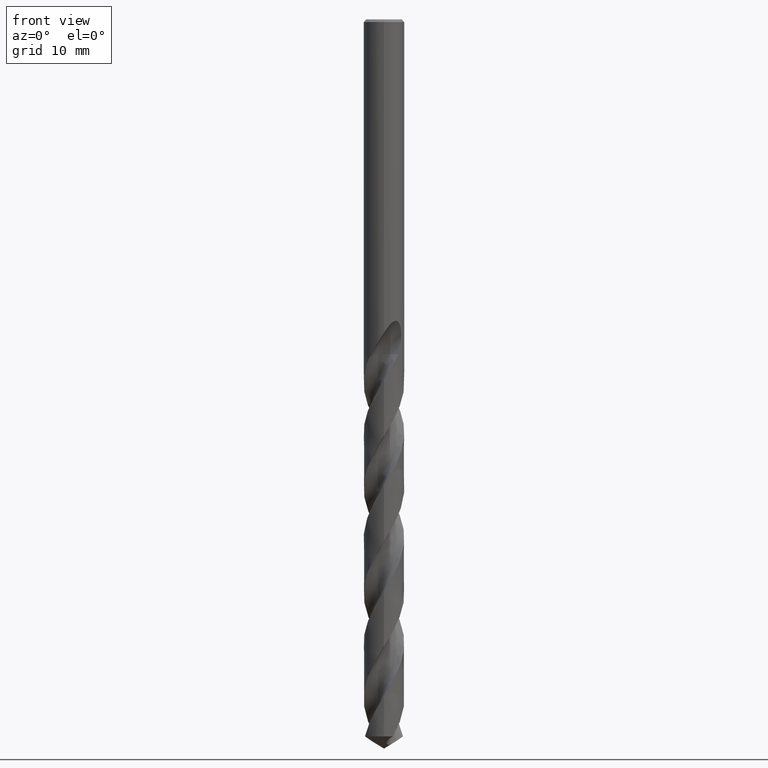
[diagram: clean part render]
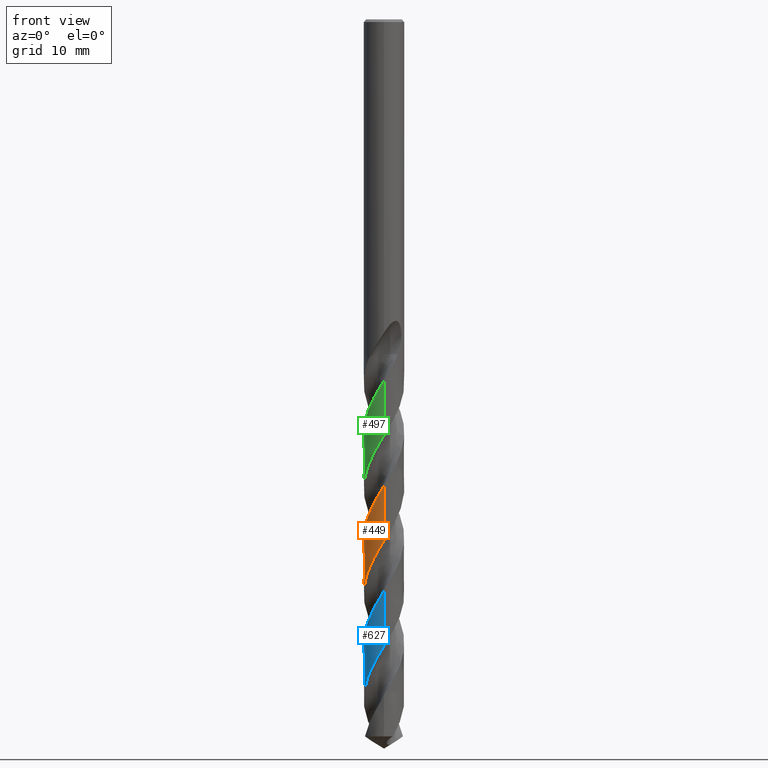
[diagram: same view with three faces highlighted in distinct colors, each labeled with its STEP entity id]
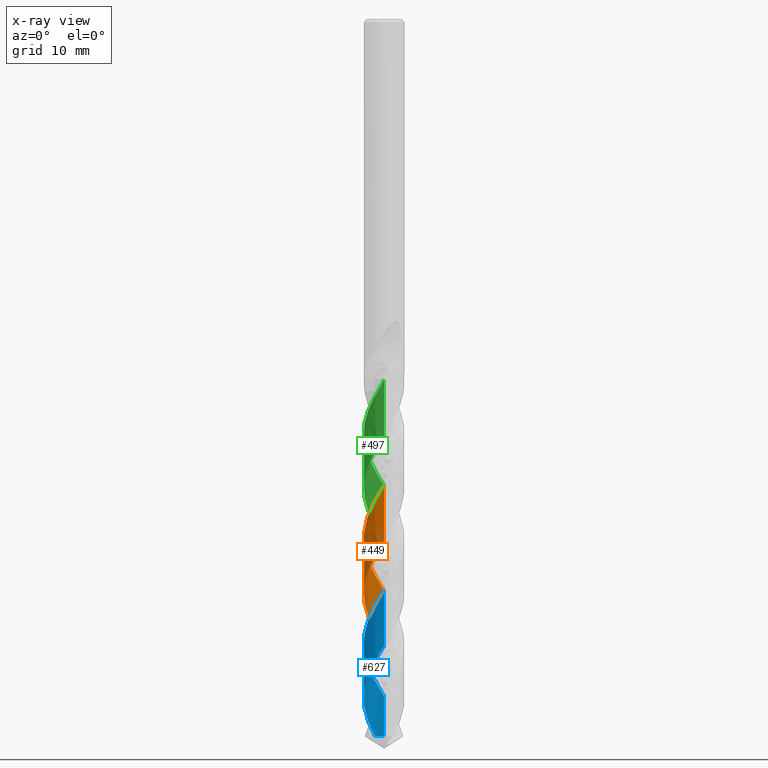
[diagram: x-ray of the same camera — body ghosted, the three highlighted faces saturated]
A machine part, front view with three faces highlighted in distinct colors.
The next image is the same camera in x-ray (body ghosted, the three faces saturated) — at least one of them is partly hidden behind the body in this view.
Their STEP definitions:

[orange] entity #449 — the highlighted conical surface has half-angle 0 deg.
#303=EDGE_CURVE('',#457,#563,#803,.T.);
#449=ADVANCED_FACE('',(#963),#964,.T.);
#457=VERTEX_POINT('',#973);
#489=EDGE_CURVE('',#579,#591,#1009,.T.);
#563=VERTEX_POINT('',#1091);
#579=VERTEX_POINT('',#1107);
#591=VERTEX_POINT('',#1119);
#641=EDGE_CURVE('',#563,#579,#1173,.T.);
#691=EDGE_CURVE('',#591,#457,#1229,.T.);
#803=B_SPLINE_CURVE_WITH_KNOTS('',3,(#1549,#1550,#1551,#1552,#1553,#1554,#1555,#1556,#1557,#1558,#1559,#1560,#1561,#1562,#1563,#1564,#1565,#1566,#1567,#1568,#1569,#1570,#1571,#1572,#1573,#1574,#1575,#1576,#1577,#1578,#1579,#1580,#1581,#1582,#1583,#1584,#1585,#1586,#1587,#1588,#1589,#1590,#1591,#1592,#1593,#1594,#1595,#1596,#1597,#1598,#1599,#1600,#1601,#1602,#1603,#1604,#1605,#1606,#1607,#1608,#1609,#1610,#1611,#1612,#1613,#1614,#1615,#1616,#1617,#1618,#1619,#1620,#1621,#1622,#1623,#1624,#1625,#1626,#1627,#1628,#1629,#1630,#1631,#1632,#1633,#1634,#1635,#1636,#1637,#1638,#1639,#1640,#1641,#1642,#1643,#1644,#1645,#1646,#1647,#1648,#1649,#1650,#1651,#1652,#1653,#1654,#1655,#1656,#1657,#1658,#1659,#1660,#1661,#1662,#1663,#1664,#1665,#1666,#1667,#1668,#1669,#1670,#1671,#1672,#1673,#1674,#1675,#1676,#1677,#1678,#1679,#1680,#1681,#1682,#1683,#1684,#1685,#1686,#1687,#1688,#1689,#1690,#1691,#1692,#1693,#1694,#1695,#1696,#1697,#1698,#1699,#1700,#1701,#1702),.UNSPECIFIED.,.F.,.F.,(4,2,2,2,2,2,2,2,2,2,2,2,2,2,2,2,2,2,2,2,2,2,2,2,2,2,2,2,2,2,2,2,2,2,2,2,2,2,2,2,2,2,2,2,2,2,2,2,2,2,2,2,2,2,2,2,2,2,2,2,2,2,2,2,2,2,2,2,2,2,2,2,2,2,2,2,4),(0.0,0.0402327924461059,1.38903119195594,2.13117347377366,2.95919916126963,3.73005424034199,4.52057601376633,5.35231172295412,6.62681414996502,6.98282198350909,7.93365808091712,8.76144638391114,9.56262136832775,10.3950714279436,11.6550650029972,12.0648807024055,13.2846357287767,13.6582611016672,14.5950054294006,15.4294665098076,16.4151197786019,17.2205977582088,18.5087701879141,18.5682732745359,19.4225927144624,19.8429733851361,20.5656832992116,21.3663636990638,22.1986358126029,23.4823316797768,23.6757525598291,25.2169764843597,25.3684600072268,26.2849223683913,26.7057554316701,27.4310464197736,28.2605551209937,29.0055973505011,29.807218723399,30.6401901329426,31.9378134505868,32.1344036050522,32.9297912618939,33.3511873257744,33.5289953407065,33.9132088244486,34.8509651581723,35.6860667437267,36.9426568017762,37.3549744929917,38.3343697192064,39.1609261019229,39.9376805339706,40.7718709907213,42.0741444148361,42.270559775572,43.8449906185465,43.904300960438,44.7704731410918,45.1894626592151,45.873732983219,46.5885200099584,47.910406577384,48.4180610166505,50.1263361298437,50.3433991536031,50.801710861817,51.0760971161525,51.2282284445184,51.3050519480967,51.4436251601096,51.5155651560572,51.5719361253895,51.6336217200829,51.7335249734407,52.0250253155775,52.4509052358259),.UNSPECIFIED.);
#963=FACE_OUTER_BOUND('',#4764,.T.);
#964=CONICAL_SURFACE('',#4765,2.39995,2.21936493711745E-006);
#973=CARTESIAN_POINT('',(2.45656439179292E-013,2.39997641394419,-73.9305449353393));
#1009=B_SPLINE_CURVE_WITH_KNOTS('',3,(#4838,#4839,#4840,#4841,#4842,#4843,#4844,#4845,#4846,#4847,#4848,#4849,#4850,#4851,#4852,#4853,#4854,#4855,#4856,#4857,#4858,#4859,#4860,#4861,#4862,#4863,#4864,#4865,#4866,#4867,#4868,#4869,#4870,#4871,#4872,#4873,#4874,#4875,#4876,#4877,#4878,#4879,#4880,#4881,#4882,#4883,#4884,#4885,#4886,#4887,#4888,#4889,#4890,#4891,#4892,#4893,#4894,#4895,#4896,#4897,#4898,#4899,#4900,#4901,#4902,#4903,#4904,#4905,#4906,#4907,#4908,#4909,#4910,#4911,#4912,#4913,#4914,#4915,#4916,#4917,#4918,#4919,#4920,#4921,#4922,#4923,#4924,#4925,#4926,#4927,#4928,#4929,#4930,#4931,#4932,#4933,#4934,#4935,#4936,#4937,#4938,#4939,#4940,#4941,#4942,#4943,#4944,#4945,#4946,#4947,#4948,#4949,#4950,#4951,#4952,#4953,#4954,#4955,#4956,#4957,#4958,#4959,#4960,#4961,#4962,#4963,#4964,#4965,#4966,#4967,#4968,#4969,#4970,#4971,#4972,#4973,#4974,#4975,#4976,#4977,#4978,#4979,#4980,#4981,#4982,#4983,#4984,#4985,#4986,#4987,#4988,#4989,#4990,#4991,#4992,#4993,#4994,#4995,#4996,#4997,#4998,#4999,#5000,#5001,#5002,#5003,#5004,#5005,#5006,#5007,#5008,#5009,#5010,#5011,#5012,#5013,#5014,#5015,#5016,#5017,#5018,#5019,#5020,#5021),.UNSPECIFIED.,.F.,.F.,(4,2,2,2,2,2,2,2,2,2,2,2,2,2,2,2,2,2,2,2,2,2,2,2,2,2,2,2,2,2,2,2,2,2,2,2,2,2,2,2,2,2,2,2,2,2,2,2,2,2,2,2,2,2,2,2,2,2,2,2,2,2,2,2,2,2,2,2,2,2,2,2,2,2,2,2,2,2,2,2,2,2,2,2,2,2,2,2,2,2,2,4),(0.0,0.14343858301379,0.188972399630387,0.211744788178116,0.226388955203841,0.238210347163206,0.24766553920278,0.255166161752204,0.26107393189106,0.26569909147927,0.269302027568404,0.27209724969379,0.274258743413754,0.275925844921514,0.277209001890916,0.545270508381398,0.610968393551029,0.647367371020632,0.678160427595024,0.714936567539963,0.782410513082369,0.82819280588672,0.910436501233352,1.25855004311537,1.43930362974492,1.58973807400488,1.66433376147384,1.82950022207393,3.16551126946806,3.67301060909354,4.50496522098054,5.83580154755301,6.66785787146221,6.82473951649302,8.0229591635271,8.88709863391488,9.77563814892931,10.6159071435761,11.3735993458,12.249961292363,13.138573513619,13.9689279713048,14.7171056654058,15.7087469961302,16.5262688927611,17.317145817988,18.0459376007642,19.0943834165513,19.9142534818849,20.2969261420562,21.5679701063304,22.3499891056177,23.0754685911926,24.1336346854687,24.9717835821478,25.3418710936875,26.631807079598,27.0111226154525,28.2856090249817,29.0598426841685,29.9527134948809,30.7380860372647,31.4645369148953,32.5181182498173,33.3376915339027,33.7182344623233,34.9911251160255,35.7676899280252,36.4911133562095,37.5536149244234,38.3914470573855,38.7597508371868,40.051414245316,40.4283228983953,41.7052335679549,42.0945068803702,43.3547075209412,44.1531160885726,44.8829446608781,45.9222080550438,46.6706701602811,47.5158874671734,48.608866087523,48.7607648400806,49.9654141616701,50.9837244245353,51.4985451677078,51.7567863406212,51.8855977534953,51.9497859521511,51.9818040647308,52.0137690310998),.UNSPECIFIED.);
#1091=CARTESIAN_POINT('',(8.13096291229303E-016,-2.39994885598919,-61.5134996165615));
#1107=CARTESIAN_POINT('',(-1.25095808936629E-014,-2.39993433066251,-54.9686874302133));
#1119=CARTESIAN_POINT('',(9.58197577272962E-013,2.39996189100075,-67.3868065867875));
#1173=LINE('',#6832,#6833);
#1229=LINE('',#8098,#8099);
#1549=CARTESIAN_POINT('',(1.05190703588296,-2.15719530591459,-84.5579345143338));
#1550=CARTESIAN_POINT('',(1.05812048696504,-2.15416542998993,-84.5464425196042));
#1551=CARTESIAN_POINT('',(1.06435257192491,-2.15109331978557,-84.5348917925545));
#1552=CARTESIAN_POINT('',(1.28089696844611,-2.04315873887548,-84.1328781924707));
#1553=CARTESIAN_POINT('',(1.47512611749647,-1.90782913155918,-83.7492670861824));
#1554=CARTESIAN_POINT('',(1.74152823203223,-1.6564911791666,-83.1461625547541));
#1555=CARTESIAN_POINT('',(1.82866042257726,-1.55977863176806,-82.9312603108275));
#1556=CARTESIAN_POINT('',(1.995689116366,-1.34099683465304,-82.478354139217));
#1557=CARTESIAN_POINT('',(2.07310844725574,-1.21789024208854,-82.2409356473858));
#1558=CARTESIAN_POINT('',(2.20020629400506,-0.968150233600546,-81.7797870705889));
#1559=CARTESIAN_POINT('',(2.25112345970702,-0.842978048313644,-81.5563839856781));
#1560=CARTESIAN_POINT('',(2.3324387794588,-0.582094423986847,-81.1060825794729));
#1561=CARTESIAN_POINT('',(2.36214108605588,-0.446602260782441,-80.8794159384221));
#1562=CARTESIAN_POINT('',(2.39877510694721,-0.164595326651107,-80.411933768206));
#1563=CARTESIAN_POINT('',(2.40431473723776,-0.0188259422139969,-80.1712277109946));
#1564=CARTESIAN_POINT('',(2.38493604913105,0.348773134456678,-79.5643071340697));
#1565=CARTESIAN_POINT('',(2.34232064833355,0.56824779689304,-79.2022767147038));
#1566=CARTESIAN_POINT('',(2.25005197020967,0.837293721714847,-78.7323577884763));
#1567=CARTESIAN_POINT('',(2.22764158374868,0.89522569237924,-78.6295179893061));
#1568=CARTESIAN_POINT('',(2.13691211524948,1.10508424776942,-78.2523062869471));
#1569=CARTESIAN_POINT('',(2.05514576767973,1.25063810442638,-77.9801054429341));
#1570=CARTESIAN_POINT('',(1.87496958408713,1.50514989543253,-77.4673099882908));
#1571=CARTESIAN_POINT('',(1.78067908831332,1.61557295721855,-77.2275475518472));
#1572=CARTESIAN_POINT('',(1.57682556790305,1.81471300673371,-76.757903588542));
#1573=CARTESIAN_POINT('',(1.46810352178675,1.90375870484381,-76.5282755566101));
#1574=CARTESIAN_POINT('',(1.23158783080428,2.06503764335195,-76.0576787697316));
#1575=CARTESIAN_POINT('',(1.1040127450203,2.13593320783955,-75.8168563624128));
#1576=CARTESIAN_POINT('',(0.769731768617574,2.28382635752947,-75.2141302759874));
#1577=CARTESIAN_POINT('',(0.557342038628314,2.3446882095163,-74.8562529482745));
#1578=CARTESIAN_POINT('',(0.26903269884786,2.38592165609157,-74.3752409701361));
#1579=CARTESIAN_POINT('',(0.197754800256833,2.39288951310564,-74.256678969471));
#1580=CARTESIAN_POINT('',(-0.0868453188146343,2.40787237731742,-73.7866591890485));
#1581=CARTESIAN_POINT('',(-0.300294373126444,2.39063575960726,-73.4394746339067));
#1582=CARTESIAN_POINT('',(-0.572414904322689,2.33162621733629,-72.9800072550525));
#1583=CARTESIAN_POINT('',(-0.635525819835647,2.31521886917099,-72.8719965719919));
#1584=CARTESIAN_POINT('',(-0.854437153930204,2.2486799131487,-72.4942214233136));
#1585=CARTESIAN_POINT('',(-1.00586891529908,2.18517977046874,-72.2263082741807));
#1586=CARTESIAN_POINT('',(-1.27814501691304,2.03655742048895,-71.7164376362041));
#1587=CARTESIAN_POINT('',(-1.3995584925515,1.9550714190575,-71.4752546779979));
#1588=CARTESIAN_POINT('',(-1.64616852322461,1.75487123774634,-70.9513704992657));
#1589=CARTESIAN_POINT('',(-1.76775579290612,1.63235053207619,-70.6701450241122));
#1590=CARTESIAN_POINT('',(-1.96311840553647,1.38774327634101,-70.1550799190913));
#1591=CARTESIAN_POINT('',(-2.0410098055056,1.27039068718788,-69.9223527971452));
#1592=CARTESIAN_POINT('',(-2.21565531101068,0.949353707118014,-69.320303567715));
#1593=CARTESIAN_POINT('',(-2.29463137173293,0.738035085820285,-68.9550940050964));
#1594=CARTESIAN_POINT('',(-2.34534776121127,0.509196064685899,-68.5671846453962));
#1595=CARTESIAN_POINT('',(-2.34752068645903,0.499082968606615,-68.550057740995));
#1596=CARTESIAN_POINT('',(-2.37999075495201,0.343037234742877,-68.2863498966169));
#1597=CARTESIAN_POINT('',(-2.39676789955262,0.194305318305941,-68.041440458356));
#1598=CARTESIAN_POINT('',(-2.40091719845134,-0.02910188252485,-67.6743934260765));
#1599=CARTESIAN_POINT('',(-2.39889043230432,-0.102745028356778,-67.5535093369848));
#1600=CARTESIAN_POINT('',(-2.38420855003248,-0.302263896819012,-67.2241692184905));
#1601=CARTESIAN_POINT('',(-2.36499419777194,-0.427295409859253,-67.0149934248711));
#1602=CARTESIAN_POINT('',(-2.30392351512654,-0.686543152244395,-66.576112941836));
#1603=CARTESIAN_POINT('',(-2.25994486034617,-0.819824188729084,-66.3467919765989));
#1604=CARTESIAN_POINT('',(-2.14692516058497,-1.08247473652163,-65.8767119061601));
#1605=CARTESIAN_POINT('',(-2.07734106855997,-1.21060631184399,-65.6360841427287));
#1606=CARTESIAN_POINT('',(-1.87237536607355,-1.51797075831104,-65.026988252401));
#1607=CARTESIAN_POINT('',(-1.72261814143995,-1.6859419736809,-64.6626596295981));
#1608=CARTESIAN_POINT('',(-1.52631108366163,-1.85237515949745,-64.2373591098053));
#1609=CARTESIAN_POINT('',(-1.5001960465348,-1.87358711603602,-64.1816288257225));
#1610=CARTESIAN_POINT('',(-1.26183353880648,-2.05901672208994,-63.6823676056406));
#1611=CARTESIAN_POINT('',(-1.02411565240465,-2.18696317703168,-63.2479129527563));
#1612=CARTESIAN_POINT('',(-0.745299171050022,-2.28144494395391,-62.7610607389056));
#1613=CARTESIAN_POINT('',(-0.720237446110441,-2.28948063166665,-62.7174715485942));
#1614=CARTESIAN_POINT('',(-0.542190615128179,-2.34334707304081,-62.4099389737822));
#1615=CARTESIAN_POINT('',(-0.38487049623408,-2.3743078111642,-62.1480251111462));
#1616=CARTESIAN_POINT('',(-0.151969399315513,-2.39626414921693,-61.7636889217298));
#1617=CARTESIAN_POINT('',(-0.078488910427091,-2.39978917077779,-61.6428889046072));
#1618=CARTESIAN_POINT('',(0.121507997108242,-2.40020962408849,-61.3131945562946));
#1619=CARTESIAN_POINT('',(0.247964099544042,-2.39046918198822,-61.1035510440759));
#1620=CARTESIAN_POINT('',(0.516482942240285,-2.34819558233671,-60.6561385177021));
#1621=CARTESIAN_POINT('',(0.657383744516996,-2.31270735211906,-60.4189034714231));
#1622=CARTESIAN_POINT('',(0.917115504496245,-2.22162080961193,-59.9658659277865));
#1623=CARTESIAN_POINT('',(1.0361283870961,-2.16866263684336,-59.7505048009648));
#1624=CARTESIAN_POINT('',(1.27314871918203,-2.03921928748299,-59.3055175507785));
#1625=CARTESIAN_POINT('',(1.38996912630697,-1.96146973809038,-59.0762340278377));
#1626=CARTESIAN_POINT('',(1.61314874259824,-1.78288832403485,-58.6063008084179));
#1627=CARTESIAN_POINT('',(1.718181145142,-1.68186565517346,-58.3657772281185));
#1628=CARTESIAN_POINT('',(1.9615525660248,-1.40115162843968,-57.7532723491362));
#1629=CARTESIAN_POINT('',(2.08470311448659,-1.21024187959101,-57.3855686026857));
#1630=CARTESIAN_POINT('',(2.19358566114638,-0.974195874235831,-56.9558636212395));
#1631=CARTESIAN_POINT('',(2.20722824083091,-0.942878868925923,-56.8992816918028));
#1632=CARTESIAN_POINT('',(2.27280739312617,-0.783089483227594,-56.6138133789039));
#1633=CARTESIAN_POINT('',(2.31430800839972,-0.650402155666292,-56.386244122133));
#1634=CARTESIAN_POINT('',(2.35992603467077,-0.442577764692845,-56.0367260583374));
#1635=CARTESIAN_POINT('',(2.37238797318848,-0.369975139220121,-55.9158426562608));
#1636=CARTESIAN_POINT('',(2.38533147851419,-0.266177087935129,-55.7436163115217));
#1637=CARTESIAN_POINT('',(2.38857111687971,-0.235330962356444,-55.6925090658041));
#1638=CARTESIAN_POINT('',(2.39691472050339,-0.137745016912447,-55.5308671538957));
#1639=CARTESIAN_POINT('',(2.39982113316519,-0.0709227335929631,-55.4200794240003));
#1640=CARTESIAN_POINT('',(2.40020188578307,0.159422740015332,-55.039845480825));
#1641=CARTESIAN_POINT('',(2.38378793746664,0.322620995605707,-54.7722614951593));
#1642=CARTESIAN_POINT('',(2.32143055461084,0.62604153676528,-54.2630475125003));
#1643=CARTESIAN_POINT('',(2.27912949209503,0.76576730641155,-54.022170387251));
#1644=CARTESIAN_POINT('',(2.1424171017433,1.10345740045524,-53.4214248183985));
#1645=CARTESIAN_POINT('',(2.03300174204291,1.29395994018641,-53.0655065852997));
#1646=CARTESIAN_POINT('',(1.8555821937322,1.52368522302854,-52.5861891751463));
#1647=CARTESIAN_POINT('',(1.80925389546019,1.5784243815258,-52.4674521566367));
#1648=CARTESIAN_POINT('',(1.6443809016604,1.75636208111995,-52.0673338760702));
#1649=CARTESIAN_POINT('',(1.51525020890759,1.86893137741094,-51.7881798370436));
#1650=CARTESIAN_POINT('',(1.2568462815044,2.04958691922292,-51.2694720276662));
#1651=CARTESIAN_POINT('',(1.13153712747886,2.12132917080162,-51.0309335390424));
#1652=CARTESIAN_POINT('',(0.877431859375545,2.23787724552534,-50.5704273960335));
#1653=CARTESIAN_POINT('',(0.749699268419452,2.28385115267324,-50.3485483787329));
#1654=CARTESIAN_POINT('',(0.477961534887683,2.35635163894641,-49.8861508416522));
#1655=CARTESIAN_POINT('',(0.334345153665389,2.38095224989625,-49.6456556300673));
#1656=CARTESIAN_POINT('',(-0.0364486219382518,2.41033129416108,-49.0324398692748));
#1657=CARTESIAN_POINT('',(-0.26363715023587,2.39609520283882,-48.6640256769522));
#1658=CARTESIAN_POINT('',(-0.518560863088373,2.34347422740761,-48.2337091681134));
#1659=CARTESIAN_POINT('',(-0.551780724015234,2.33587608093391,-48.1772641093513));
#1660=CARTESIAN_POINT('',(-0.850433411317417,2.26082447284655,-47.668338489695));
#1661=CARTESIAN_POINT('',(-1.10223611602181,2.14926351479071,-47.2255334819247));
#1662=CARTESIAN_POINT('',(-1.3382637480903,1.99217303242349,-46.7561426521636));
#1663=CARTESIAN_POINT('',(-1.34682982278123,1.98639228104179,-46.7390403344895));
#1664=CARTESIAN_POINT('',(-1.48049357212549,1.89491742057838,-46.4711160763346));
#1665=CARTESIAN_POINT('',(-1.59748046913952,1.79745663797282,-46.2220767802482));
#1666=CARTESIAN_POINT('',(-1.75656226918342,1.63691961916379,-45.8508216061151));
#1667=CARTESIAN_POINT('',(-1.80594187643486,1.58226733260339,-45.7299443486696));
#1668=CARTESIAN_POINT('',(-1.92904480102394,1.43275866695562,-45.411026030263));
#1669=CARTESIAN_POINT('',(-1.99822905786439,1.3345661191532,-45.2123507871553));
#1670=CARTESIAN_POINT('',(-2.12415721393372,1.12394458966455,-44.8079491449422));
#1671=CARTESIAN_POINT('',(-2.18002024440735,1.01136750795592,-44.6023154271172));
#1672=CARTESIAN_POINT('',(-2.31346650268905,0.679266653899294,-44.0141141568932));
#1673=CARTESIAN_POINT('',(-2.36831991233495,0.452351481585211,-43.6310044834973));
#1674=CARTESIAN_POINT('',(-2.39793044770071,0.132104933962797,-43.1026532116377));
#1675=CARTESIAN_POINT('',(-2.40118155684037,0.0428789305266566,-42.956382570259));
#1676=CARTESIAN_POINT('',(-2.39367045576355,-0.346360875641758,-42.3163349849855));
#1677=CARTESIAN_POINT('',(-2.33167702133774,-0.643139971428365,-41.8205448396059));
#1678=CARTESIAN_POINT('',(-2.20128653826641,-0.956735309974548,-41.2655341750196));
#1679=CARTESIAN_POINT('',(-2.18572056156757,-0.991785586664441,-41.2030143191187));
#1680=CARTESIAN_POINT('',(-2.13461075238596,-1.09979459336737,-41.0085467869568));
#1681=CARTESIAN_POINT('',(-2.09649641099772,-1.17081921310148,-40.8790977704361));
#1682=CARTESIAN_POINT('',(-2.02947636742664,-1.28184108932356,-40.6627848177852));
#1683=CARTESIAN_POINT('',(-2.00353357875564,-1.32196501950062,-40.581586099169));
#1684=CARTESIAN_POINT('',(-1.96213234530965,-1.38211620810508,-40.4542011856782));
#1685=CARTESIAN_POINT('',(-1.94718894511447,-1.4030796759944,-40.4086460607985));
#1686=CARTESIAN_POINT('',(-1.92446952982542,-1.43391462286918,-40.3397547019019));
#1687=CARTESIAN_POINT('',(-1.91681302901546,-1.44413207884862,-40.3166001734074));
#1688=CARTESIAN_POINT('',(-1.89525952842145,-1.47242758028058,-40.2515321629437));
#1689=CARTESIAN_POINT('',(-1.88697588040128,-1.48297269320911,-40.2260429814596));
#1690=CARTESIAN_POINT('',(-1.86903114026141,-1.50543891945813,-40.1743169150638));
#1691=CARTESIAN_POINT('',(-1.86276209553863,-1.51319092898769,-40.1567274289867));
#1692=CARTESIAN_POINT('',(-1.85132278257486,-1.52715208987035,-40.1254970610923));
#1693=CARTESIAN_POINT('',(-1.84621041313279,-1.53332951731306,-40.1118311428286));
#1694=CARTESIAN_POINT('',(-1.83531475716085,-1.54635853633682,-40.0833185068853));
#1695=CARTESIAN_POINT('',(-1.82951579712139,-1.55321622376824,-40.0684875315053));
#1696=CARTESIAN_POINT('',(-1.81403662354031,-1.57130948617516,-40.0298028801985));
#1697=CARTESIAN_POINT('',(-1.8041850734903,-1.58261654084316,-40.0060704053876));
#1698=CARTESIAN_POINT('',(-1.76442105464462,-1.62736924462994,-39.9137541665175));
#1699=CARTESIAN_POINT('',(-1.73242243169168,-1.66152029327157,-39.8467929090216));
#1700=CARTESIAN_POINT('',(-1.64696804320127,-1.74704601723925,-39.6854452254464));
#1701=CARTESIAN_POINT('',(-1.59105302464743,-1.79847005734829,-39.5938489771972));
#1702=CARTESIAN_POINT('',(-1.52928701150974,-1.84954083482635,-39.505));
#4764=EDGE_LOOP('',(#8951,#8952,#8953,#8954));
#4765=AXIS2_PLACEMENT_3D('',#8955,#8956,#8957);
#4838=CARTESIAN_POINT('',(-1.66811490938291,1.72537320958596,-39.505));
#4839=CARTESIAN_POINT('',(-1.65116147605927,1.74176415403253,-39.5465931210194));
#4840=CARTESIAN_POINT('',(-1.63388868674062,1.75798173475211,-39.5882514765582));
#4841=CARTESIAN_POINT('',(-1.61061557163927,1.77918424059149,-39.6430816897766));
#4842=CARTESIAN_POINT('',(-1.60497321471459,1.78427597629089,-39.6562785545574));
#4843=CARTESIAN_POINT('',(-1.59644743816673,1.79189620121012,-39.6760670623909));
#4844=CARTESIAN_POINT('',(-1.59359572101758,1.79443284710127,-39.6826607483154));
#4845=CARTESIAN_POINT('',(-1.58889341593555,1.79859551464351,-39.6934910386165));
#4846=CARTESIAN_POINT('',(-1.58704903338521,1.80022319289269,-39.6977283924381));
#4847=CARTESIAN_POINT('',(-1.58370816984497,1.8031623834421,-39.7053844342152));
#4848=CARTESIAN_POINT('',(-1.58221326648206,1.80447426564491,-39.7088032347847));
#4849=CARTESIAN_POINT('',(-1.57951771859383,1.80683386367879,-39.7149552228815));
#4850=CARTESIAN_POINT('',(-1.5783181252942,1.80788184477078,-39.7176885389849));
#4851=CARTESIAN_POINT('',(-1.57616374475989,1.80976015799608,-39.722589276344));
#4852=CARTESIAN_POINT('',(-1.57520964263273,1.81059067367088,-39.7247568101813));
#4853=CARTESIAN_POINT('',(-1.57350206066509,1.81207469607829,-39.7286310113979));
#4854=CARTESIAN_POINT('',(-1.57274901863907,1.81272832578436,-39.7303377655016));
#4855=CARTESIAN_POINT('',(-1.57140518987042,1.81389328110228,-39.7333803693969));
#4856=CARTESIAN_POINT('',(-1.57081467817656,1.81440468687209,-39.7347162810193));
#4857=CARTESIAN_POINT('',(-1.56976341064944,1.81531422644739,-39.7370926256394));
#4858=CARTESIAN_POINT('',(-1.56930282508988,1.8157124113529,-39.7381331005652));
#4859=CARTESIAN_POINT('',(-1.56848445141761,1.81641936657703,-39.7399806566078));
#4860=CARTESIAN_POINT('',(-1.56812676748327,1.81672816884439,-39.7407877650521));
#4861=CARTESIAN_POINT('',(-1.56749221809113,1.81727567254779,-39.7422189116155));
#4862=CARTESIAN_POINT('',(-1.56721541571231,1.81751439369398,-39.7428429671543));
#4863=CARTESIAN_POINT('',(-1.56672495886431,1.81793718027682,-39.7439482891671));
#4864=CARTESIAN_POINT('',(-1.56651134241958,1.81812125761521,-39.7444295662224));
#4865=CARTESIAN_POINT('',(-1.5661332091682,1.81844698606228,-39.7452812487038));
#4866=CARTESIAN_POINT('',(-1.56596871485132,1.81858864453915,-39.7456516611125));
#4867=CARTESIAN_POINT('',(-1.53143321238679,1.8483216119482,-39.8234019731374));
#4868=CARTESIAN_POINT('',(-1.49619614347158,1.87699252815494,-39.8990170557056));
#4869=CARTESIAN_POINT('',(-1.45004601050293,1.91233437443527,-39.9939132931892));
#4870=CARTESIAN_POINT('',(-1.44089047438461,1.919242704989,-40.0125527009415));
#4871=CARTESIAN_POINT('',(-1.42653647542275,1.92991194591684,-40.0415134372217));
#4872=CARTESIAN_POINT('',(-1.42139782130385,1.93369981993919,-40.0518299635746));
#4873=CARTESIAN_POINT('',(-1.41187028036799,1.94066423015582,-40.0708697820199));
#4874=CARTESIAN_POINT('',(-1.40748944337404,1.94384387522351,-40.0795904813977));
#4875=CARTESIAN_POINT('',(-1.39784336635155,1.95079527097444,-40.0987231184728));
#4876=CARTESIAN_POINT('',(-1.39257386166495,1.95456045192554,-40.1091300910956));
#4877=CARTESIAN_POINT('',(-1.37757931617723,1.9651828143834,-40.1386285678068));
#4878=CARTESIAN_POINT('',(-1.36781664473711,1.97199049644354,-40.1576983983493));
#4879=CARTESIAN_POINT('',(-1.35133228975423,1.98330373809544,-40.1897193768259));
#4880=CARTESIAN_POINT('',(-1.34464625931233,1.98784285885502,-40.2026584058349));
#4881=CARTESIAN_POINT('',(-1.32588660098175,2.00044078333827,-40.2388547898046));
#4882=CARTESIAN_POINT('',(-1.31381472673807,2.00839055265299,-40.2620607244693));
#4883=CARTESIAN_POINT('',(-1.24955895394632,2.04986805554043,-40.3854330590874));
#4884=CARTESIAN_POINT('',(-1.19664572311853,2.08117473323045,-40.4861201634683));
#4885=CARTESIAN_POINT('',(-1.11518339460191,2.12530015236144,-40.6387293243058));
#4886=CARTESIAN_POINT('',(-1.08707764742374,2.13981138435137,-40.6909666859569));
#4887=CARTESIAN_POINT('',(-1.0351347523055,2.16534545736955,-40.7866322654595));
#4888=CARTESIAN_POINT('',(-1.01134989492385,2.17655620772534,-40.8301102823069));
#4889=CARTESIAN_POINT('',(-0.975501226205669,2.19273852148706,-40.8951132302661));
#4890=CARTESIAN_POINT('',(-0.963570493221686,2.1980075555424,-40.9166608946376));
#4891=CARTESIAN_POINT('',(-0.925074689836797,2.21463475591342,-40.9859038561863));
#4892=CARTESIAN_POINT('',(-0.898329716713567,2.22561829576418,-41.0335937441656));
#4893=CARTESIAN_POINT('',(-0.653364597711251,2.32107797297747,-41.4671678202647));
#4894=CARTESIAN_POINT('',(-0.423931167260356,2.37375436452219,-41.8501640870163));
#4895=CARTESIAN_POINT('',(-0.101690200601581,2.39940181352066,-42.3824463810793));
#4896=CARTESIAN_POINT('',(-0.012700879729454,2.40151939398125,-42.5288596292748));
#4897=CARTESIAN_POINT('',(0.221834856677543,2.39407349108038,-42.9157498658143));
#4898=CARTESIAN_POINT('',(0.366865161562154,2.37618531454334,-43.1556884881089));
#4899=CARTESIAN_POINT('',(0.737518441464023,2.29567091450075,-43.7801763087456));
#4900=CARTESIAN_POINT('',(0.957099943411525,2.21312985632647,-44.16238168125));
#4901=CARTESIAN_POINT('',(1.28887652849914,2.02969055337897,-44.7870445244021));
#4902=CARTESIAN_POINT('',(1.40985600842421,1.94761033747481,-45.0266579718643));
#4903=CARTESIAN_POINT('',(1.54393777069402,1.83755145172038,-45.3121811128701));
#4904=CARTESIAN_POINT('',(1.56489981937345,1.81973285221181,-45.3574636731974));
#4905=CARTESIAN_POINT('',(1.74326636530614,1.66275388390024,-45.7488171583069));
#4906=CARTESIAN_POINT('',(1.88214100341168,1.50377228774134,-46.0940477129657));
#4907=CARTESIAN_POINT('',(2.08247401516652,1.20244963524964,-46.689651562324));
#4908=CARTESIAN_POINT('',(2.15421977507757,1.06858659344684,-46.9385567158409));
#4909=CARTESIAN_POINT('',(2.2731287283663,0.785331232709335,-47.4449329730824));
#4910=CARTESIAN_POINT('',(2.31932262499683,0.636126724869852,-47.7010262895585));
#4911=CARTESIAN_POINT('',(2.38042656432452,0.33899861045074,-48.200305920231));
#4912=CARTESIAN_POINT('',(2.39673865150483,0.192227506032483,-48.4424837840682));
#4913=CARTESIAN_POINT('',(2.40198810844994,-0.0878153366752,-48.9041652334711));
#4914=CARTESIAN_POINT('',(2.39345191732934,-0.220644821739502,-49.1226891655413));
#4915=CARTESIAN_POINT('',(2.35138358211255,-0.504248091417622,-49.5946235746941));
#4916=CARTESIAN_POINT('',(2.3142676279802,-0.653752458587922,-49.847047505073));
#4917=CARTESIAN_POINT('',(2.21132066606633,-0.945493300622265,-50.3569994689623));
#4918=CARTESIAN_POINT('',(2.14528532510075,-1.08706165080319,-50.6131182666328));
#4919=CARTESIAN_POINT('',(1.9917883213475,-1.34671941953072,-51.1095766196237));
#4920=CARTESIAN_POINT('',(1.90641083937114,-1.46506967477942,-51.34892240643));
#4921=CARTESIAN_POINT('',(1.72483468176204,-1.67385659087495,-51.8050112752487));
#4922=CARTESIAN_POINT('',(1.63076367875978,-1.7656434765444,-52.0208145201963));
#4923=CARTESIAN_POINT('',(1.39553010085153,-1.96021147370965,-52.5233209361732));
#4924=CARTESIAN_POINT('',(1.24985102819221,-2.05614975944948,-52.8088734728015));
#4925=CARTESIAN_POINT('',(0.967656405897659,-2.2008739293156,-53.3316017981571));
#4926=CARTESIAN_POINT('',(0.834471470277099,-2.25475229784414,-53.5672676653043));
#4927=CARTESIAN_POINT('',(0.564400419222825,-2.33674730974415,-54.0318003482114));
#4928=CARTESIAN_POINT('',(0.42842584451364,-2.3654487671952,-54.2598354977291));
#4929=CARTESIAN_POINT('',(0.164004289017045,-2.39772908928919,-54.6989259405913));
#4930=CARTESIAN_POINT('',(0.0361000453592362,-2.40306738956722,-54.9091681100956));
#4931=CARTESIAN_POINT('',(-0.275508622086621,-2.39115588830912,-55.4224986304087));
#4932=CARTESIAN_POINT('',(-0.457843128722606,-2.36301807048178,-55.7243142324753));
#4933=CARTESIAN_POINT('',(-0.773693737101897,-2.27634669941586,-56.2641392046234));
#4934=CARTESIAN_POINT('',(-0.908671489986122,-2.22591951085259,-56.5004605603982));
#4935=CARTESIAN_POINT('',(-1.09892676806027,-2.13461341526206,-56.8477783905829));
#4936=CARTESIAN_POINT('',(-1.15820025353705,-2.10304125857044,-56.9581833705522));
#4937=CARTESIAN_POINT('',(-1.40824598142338,-1.9560797529062,-57.4359711763643));
#4938=CARTESIAN_POINT('',(-1.58385638109884,-1.81683422680588,-57.8019722202823));
#4939=CARTESIAN_POINT('',(-1.83240637405878,-1.55590783517914,-58.3950657523629));
#4940=CARTESIAN_POINT('',(-1.91832793835441,-1.44863443066851,-58.6206123186413));
#4941=CARTESIAN_POINT('',(-2.06532152026689,-1.22896511408586,-59.0562851665032));
#4942=CARTESIAN_POINT('',(-2.12757929217738,-1.11774239634931,-59.2656234372791));
#4943=CARTESIAN_POINT('',(-2.25828105586763,-0.833301248154513,-59.7809227705852));
#4944=CARTESIAN_POINT('',(-2.31594039297593,-0.656191425013833,-60.085587877644));
#4945=CARTESIAN_POINT('',(-2.38165687081031,-0.330235058513702,-60.6336261455698));
#4946=CARTESIAN_POINT('',(-2.39742259830914,-0.183729876644085,-60.8752358095113));
#4947=CARTESIAN_POINT('',(-2.40066012164822,0.0283256519832455,-61.2242754928902));
#4948=CARTESIAN_POINT('',(-2.39901412003392,0.0932659557342408,-61.3310826662175));
#4949=CARTESIAN_POINT('',(-2.37983841524653,0.383835732122894,-61.8108107347656));
#4950=CARTESIAN_POINT('',(-2.33306617211165,0.606507793797689,-62.1822409456184));
#4951=CARTESIAN_POINT('',(-2.23301241278322,0.881962125767723,-62.6645644591967));
#4952=CARTESIAN_POINT('',(-2.20769034000134,0.943557566710335,-62.7740510754076));
#4953=CARTESIAN_POINT('',(-2.08629677397333,1.20712298448877,-63.2520760797525));
#4954=CARTESIAN_POINT('',(-1.96476130802076,1.3962725951205,-63.6192105797545));
#4955=CARTESIAN_POINT('',(-1.7300342412712,1.66890651929837,-64.211309770652));
#4956=CARTESIAN_POINT('',(-1.63278157956301,1.76415809788107,-64.4347218866551));
#4957=CARTESIAN_POINT('',(-1.40728959227948,1.95034767301425,-64.916733728251));
#4958=CARTESIAN_POINT('',(-1.27698299839366,2.0380605637109,-65.1742221258647));
#4959=CARTESIAN_POINT('',(-1.01758335847503,2.17792163927132,-65.6592527399317));
#4960=CARTESIAN_POINT('',(-0.890840607357512,2.2327522761876,-65.8858612513167));
#4961=CARTESIAN_POINT('',(-0.639304866225568,2.31675047921682,-66.3229785309425));
#4962=CARTESIAN_POINT('',(-0.515357855782215,2.34744189016004,-66.5326887299916));
#4963=CARTESIAN_POINT('',(-0.206962482847773,2.39816611120735,-67.0471726477625));
#4964=CARTESIAN_POINT('',(-0.0216414234368788,2.40697087762574,-67.3506601308401));
#4965=CARTESIAN_POINT('',(0.306202053258478,2.38468736883599,-67.8922463672981));
#4966=CARTESIAN_POINT('',(0.448551843482357,2.3620626534197,-68.1286381637811));
#4967=CARTESIAN_POINT('',(0.652875642336884,2.31042155929509,-68.4754878081433));
#4968=CARTESIAN_POINT('',(0.716926955593096,2.29135462605597,-68.5853533757256));
#4969=CARTESIAN_POINT('',(0.991353201798371,2.19703429680611,-69.0633818474954));
#4970=CARTESIAN_POINT('',(1.19155863307111,2.09523570836627,-69.4301480632134));
#4971=CARTESIAN_POINT('',(1.48661612511247,1.88902679566811,-70.0225968053905));
#4972=CARTESIAN_POINT('',(1.59149236299962,1.80154480233725,-70.2467288862866));
#4973=CARTESIAN_POINT('',(1.77853663541859,1.61640647036126,-70.6805223159693));
#4974=CARTESIAN_POINT('',(1.86156329036984,1.52005849197138,-70.8894095365316));
#4975=CARTESIAN_POINT('',(2.04681901365659,1.26696903709054,-71.4057143733402));
#4976=CARTESIAN_POINT('',(2.13905220422323,1.10411813303475,-71.711824156423));
#4977=CARTESIAN_POINT('',(2.26858902357478,0.796859836660503,-72.2613920803637));
#4978=CARTESIAN_POINT('',(2.31316115733026,0.656364437502041,-72.5030699930634));
#4979=CARTESIAN_POINT('',(2.35841099997398,0.449397270436922,-72.8517366203973));
#4980=CARTESIAN_POINT('',(2.36966209045939,0.385691399551147,-72.9581015729803));
#4981=CARTESIAN_POINT('',(2.40871250901403,0.0969305509661457,-73.438136514715));
#4982=CARTESIAN_POINT('',(2.40711537826401,-0.131059229017311,-73.8103007534343));
#4983=CARTESIAN_POINT('',(2.36369631321072,-0.420969251512652,-74.2927510882612));
#4984=CARTESIAN_POINT('',(2.35118671105162,-0.48599621457738,-74.4016174987975));
#4985=CARTESIAN_POINT('',(2.28459275688301,-0.768634062595984,-74.8799700148646));
#4986=CARTESIAN_POINT('',(2.20281755294077,-0.978694194429605,-75.2480339045235));
#4987=CARTESIAN_POINT('',(2.05955097846364,-1.23403192312596,-75.7298991976771));
#4988=CARTESIAN_POINT('',(2.02355709848965,-1.29220646191383,-75.8423526142233));
#4989=CARTESIAN_POINT('',(1.86076072204825,-1.53181700220541,-76.3195403754183));
#4990=CARTESIAN_POINT('',(1.71158993633661,-1.69688929810266,-76.6829429575317));
#4991=CARTESIAN_POINT('',(1.43432070635066,-1.92933612179918,-77.2784281595533));
#4992=CARTESIAN_POINT('',(1.31914255256505,-2.00983499700988,-77.5089779557294));
#4993=CARTESIAN_POINT('',(1.08663132966684,-2.14373046578269,-77.9512301674568));
#4994=CARTESIAN_POINT('',(0.970596272098183,-2.19870987882727,-78.1620953988567));
#4995=CARTESIAN_POINT('',(0.679883404870508,-2.30890726867751,-78.6738656842506));
#4996=CARTESIAN_POINT('',(0.502341789714891,-2.35390958385125,-78.9735133667457));
#4997=CARTESIAN_POINT('',(0.19128064740395,-2.39596073180855,-79.4908566309156));
#4998=CARTESIAN_POINT('',(0.0597596245086158,-2.4028486601523,-79.7070310922383));
#4999=CARTESIAN_POINT('',(-0.220214298319209,-2.39447836598477,-80.168044267588));
#5000=CARTESIAN_POINT('',(-0.367893313537178,-2.37626450495801,-80.4120452987706));
#5001=CARTESIAN_POINT('',(-0.700334468019553,-2.30354500362895,-80.9729423750585));
#5002=CARTESIAN_POINT('',(-0.882305138696736,-2.24017977514743,-81.2878548874881));
#5003=CARTESIAN_POINT('',(-1.07883661273705,-2.14401336781988,-81.6479483311245));
#5004=CARTESIAN_POINT('',(-1.102611764816,-2.13188389363205,-81.6918758547589));
#5005=CARTESIAN_POINT('',(-1.31307156084249,-2.02005159194709,-82.0843929648038));
#5006=CARTESIAN_POINT('',(-1.48607843574648,-1.89641300618864,-82.4321792214351));
#5007=CARTESIAN_POINT('',(-1.77125772448913,-1.62931486223061,-83.0754301789286));
#5008=CARTESIAN_POINT('',(-1.88778208330555,-1.49274352815098,-83.3692871588386));
#5009=CARTESIAN_POINT('',(-2.03870342718019,-1.26959198179414,-83.8129780295573));
#5010=CARTESIAN_POINT('',(-2.08512328429071,-1.19182628175709,-83.9618133638465));
#5011=CARTESIAN_POINT('',(-2.14808550155789,-1.07134811976006,-84.1854768160977));
#5012=CARTESIAN_POINT('',(-2.16797205602367,-1.03051263053621,-84.2601658038771));
#5013=CARTESIAN_POINT('',(-2.19602431797082,-0.968497972113602,-84.3721460754933));
#5014=CARTESIAN_POINT('',(-2.20506682427049,-0.94772975059257,-84.4094106636127));
#5015=CARTESIAN_POINT('',(-2.21817194807276,-0.916427627906155,-84.4652513065714));
#5016=CARTESIAN_POINT('',(-2.22245672571233,-0.905987117901448,-84.4838228574937));
#5017=CARTESIAN_POINT('',(-2.22876783995659,-0.890294955775646,-84.5116595030786));
#5018=CARTESIAN_POINT('',(-2.23084976418929,-0.885065317547575,-84.5209237959167));
#5019=CARTESIAN_POINT('',(-2.23497320341359,-0.874600571043994,-84.5394373725911));
#5020=CARTESIAN_POINT('',(-2.23701478247105,-0.869365471371292,-84.548686250539));
#5021=CARTESIAN_POINT('',(-2.23903745796532,-0.864124563837988,-84.5579345143339));
#6832=CARTESIAN_POINT('',(2.93925093004709E-016,-2.39995,-62.0289672571669));
#6833=VECTOR('',#9182,1.0);
#8098=CARTESIAN_POINT('',(-2.93873710766494E-016,2.39995,-62.0289672571669));
#8099=VECTOR('',#9242,1.0);
#8951=ORIENTED_EDGE('',*,*,#691,.T.);
#8952=ORIENTED_EDGE('',*,*,#303,.T.);
#8953=ORIENTED_EDGE('',*,*,#641,.T.);
#8954=ORIENTED_EDGE('',*,*,#489,.T.);
#8955=CARTESIAN_POINT('',(0.0,0.0,-62.0289672571669));
#8956=DIRECTION('',(0.0,-0.0,-1.0));
#8957=DIRECTION('',(0.0,1.0,0.0));
#9182=DIRECTION('',(-2.7178484034424E-022,2.21936493711563E-006,0.999999999997537));
#9242=DIRECTION('',(-2.7178484034424E-022,2.21936493711563E-006,-0.999999999997537));

[blue] entity #627 — the highlighted conical surface has half-angle 0 deg.
#285=EDGE_CURVE('',#407,#301,#784,.T.);
#301=VERTEX_POINT('',#801);
#407=VERTEX_POINT('',#917);
#423=EDGE_CURVE('',#601,#407,#935,.T.);
#435=VERTEX_POINT('',#947);
#541=VERTEX_POINT('',#1066);
#587=EDGE_CURVE('',#541,#435,#1115,.T.);
#601=VERTEX_POINT('',#1130);
#627=ADVANCED_FACE('',(#1158),#1159,.T.);
#651=EDGE_CURVE('',#301,#435,#1184,.T.);
#729=EDGE_CURVE('',#541,#601,#1271,.T.);
#784=B_SPLINE_CURVE_WITH_KNOTS('',3,(#1343,#1344,#1345,#1346,#1347,#1348,#1349,#1350,#1351,#1352,#1353,#1354,#1355,#1356,#1357,#1358,#1359,#1360,#1361,#1362,#1363,#1364,#1365,#1366,#1367,#1368,#1369,#1370,#1371,#1372,#1373,#1374,#1375,#1376,#1377,#1378,#1379,#1380,#1381,#1382,#1383,#1384,#1385,#1386,#1387,#1388,#1389,#1390,#1391,#1392,#1393,#1394,#1395,#1396,#1397,#1398,#1399,#1400,#1401,#1402,#1403,#1404,#1405,#1406,#1407,#1408,#1409,#1410,#1411,#1412,#1413,#1414,#1415,#1416,#1417,#1418,#1419,#1420,#1421,#1422,#1423,#1424,#1425,#1426,#1427,#1428,#1429,#1430,#1431,#1432,#1433,#1434,#1435,#1436,#1437,#1438,#1439,#1440,#1441,#1442,#1443,#1444,#1445,#1446,#1447,#1448,#1449,#1450,#1451,#1452,#1453,#1454,#1455,#1456,#1457,#1458,#1459,#1460,#1461,#1462,#1463,#1464,#1465,#1466,#1467,#1468,#1469,#1470,#1471,#1472,#1473,#1474,#1475,#1476,#1477,#1478,#1479,#1480,#1481,#1482,#1483,#1484,#1485,#1486,#1487,#1488,#1489,#1490,#1491,#1492,#1493,#1494,#1495,#1496,#1497,#1498,#1499,#1500,#1501,#1502,#1503,#1504,#1505,#1506,#1507,#1508,#1509,#1510,#1511,#1512,#1513,#1514,#1515,#1516,#1517,#1518,#1519,#1520,#1521,#1522,#1523,#1524,#1525,#1526),.UNSPECIFIED.,.F.,.F.,(4,2,2,2,2,2,2,2,2,2,2,2,2,2,2,2,2,2,2,2,2,2,2,2,2,2,2,2,2,2,2,2,2,2,2,2,2,2,2,2,2,2,2,2,2,2,2,2,2,2,2,2,2,2,2,2,2,2,2,2,2,2,2,2,2,2,2,2,2,2,2,2,2,2,2,2,2,2,2,2,2,2,2,2,2,2,2,2,2,2,2,4),(0.0,0.143438582967313,0.18897240022158,0.21174478823111,0.226388954967888,0.238210347564266,0.247665539664253,0.255166162593993,0.261073932524339,0.265699092194842,0.269302027971929,0.272097249755301,0.27425874353166,0.275925844603622,0.277209002035574,0.545270615740692,0.610968527223378,0.647367519281041,0.67816058820399,0.714936742925638,0.782410715611551,0.828193026804679,0.910436755220717,1.25855043702384,1.43930409631707,1.58973860107341,1.66433431866712,1.82950084461108,3.16551249158848,3.67301193156523,4.50496680971604,5.83580409702664,6.68709595869321,6.76436596690435,7.87950224667467,9.20199859784488,9.62999246923701,10.7423405143973,11.5651736099712,11.9273323634021,13.2322755864186,13.5999853292225,14.894067487553,15.2700941181462,16.5503477097656,16.9378409727759,18.2012227224855,18.9957897062857,19.7257749141161,20.767892645877,21.5868721731323,21.9710034606034,23.2384957343121,24.0245641774315,24.751071347888,25.8031743734985,26.6223955370047,27.0032153524991,28.2744000633228,29.0527874918629,29.7766452740916,30.8364938185624,31.6558856997957,32.0340011346267,33.3094457196658,33.69989500068,34.9579411851871,35.7599903899307,36.4928559127281,37.5232029830674,38.3588199107786,38.7363946090334,40.0112638145604,40.4014397873743,41.6584286425505,42.4609408470208,43.1944981870686,44.2214523334824,45.0565057658319,45.4348814821175,46.7117333613768,47.1015074127995,48.3538727577222,49.1484810856745,49.8538868799005,50.9187764046734,51.4535114743323,51.7218137977154,51.8556700305199,51.9223701475563,51.955639096019,51.9888511024435),.UNSPECIFIED.);
#801=CARTESIAN_POINT('',(4.54600401680721E-013,2.39998945252139,-79.8054585128299));
#917=CARTESIAN_POINT('',(2.6660047924996E-013,-2.39996189100075,-67.3868065867834));
#935=LINE('',#4070,#4071);
#947=CARTESIAN_POINT('',(-2.93899703137117E-016,2.4,-84.5579345143339));
#1066=CARTESIAN_POINT('',(-1.05190703588296,2.15719530591459,-84.5579345143339));
#1115=CIRCLE('',#5628,2.4);
#1130=CARTESIAN_POINT('',(1.72897656860841E-013,-2.3999764139442,-73.930544935338));
#1158=FACE_OUTER_BOUND('',#6776,.T.);
#1159=CONICAL_SURFACE('',#6777,2.39995,2.21936493711745E-006);
#1184=LINE('',#6881,#6882);
#1271=B_SPLINE_CURVE_WITH_KNOTS('',3,(#8358,#8359,#8360,#8361,#8362,#8363,#8364,#8365,#8366,#8367,#8368,#8369,#8370,#8371,#8372,#8373,#8374,#8375,#8376,#8377,#8378,#8379,#8380,#8381,#8382,#8383,#8384,#8385,#8386,#8387,#8388,#8389,#8390,#8391,#8392,#8393,#8394,#8395,#8396,#8397,#8398,#8399,#8400,#8401,#8402,#8403,#8404,#8405,#8406,#8407,#8408,#8409,#8410,#8411,#8412,#8413,#8414,#8415,#8416,#8417,#8418,#8419,#8420,#8421,#8422,#8423,#8424,#8425,#8426,#8427,#8428,#8429,#8430,#8431,#8432,#8433,#8434,#8435,#8436,#8437,#8438,#8439,#8440,#8441,#8442,#8443,#8444,#8445,#8446,#8447,#8448,#8449,#8450,#8451,#8452,#8453,#8454,#8455,#8456,#8457,#8458,#8459,#8460,#8461,#8462,#8463,#8464,#8465,#8466,#8467,#8468,#8469,#8470,#8471,#8472,#8473,#8474,#8475,#8476,#8477,#8478,#8479,#8480,#8481,#8482,#8483,#8484,#8485,#8486,#8487,#8488,#8489,#8490,#8491,#8492,#8493,#8494,#8495,#8496,#8497,#8498,#8499,#8500,#8501,#8502,#8503,#8504,#8505,#8506,#8507,#8508,#8509,#8510,#8511,#8512,#8513),.UNSPECIFIED.,.F.,.F.,(4,2,2,2,2,2,2,2,2,2,2,2,2,2,2,2,2,2,2,2,2,2,2,2,2,2,2,2,2,2,2,2,2,2,2,2,2,2,2,2,2,2,2,2,2,2,2,2,2,2,2,2,2,2,2,2,2,2,2,2,2,2,2,2,2,2,2,2,2,2,2,2,2,2,2,2,2,4),(0.0,0.0402327928803193,1.38903119374819,2.13117349160278,2.9591991795023,3.73005423952436,4.52057600492061,5.35231171466824,6.62681411156884,6.98282192682068,7.93365802021167,8.76144632924196,9.56262131782396,10.4090304945398,11.7021636166299,11.8991939045425,12.7212848730593,13.141864655572,13.8164163656662,14.618450233121,15.4516505392066,16.7199272232511,17.0589265144744,18.007947862366,18.8401785216149,20.1450233537851,20.3381026404346,21.848755276443,22.003009137719,22.79855684794,23.2191353993897,23.9453847905557,24.7464449170727,25.5790501242155,26.8643056340974,27.0644525482908,27.9039243285927,28.325316624469,28.9951488536104,29.7988459046644,30.633686418551,31.9039011087341,32.2430706288613,33.1918243476534,34.0259653422578,35.3255750183418,35.5223672377832,36.3296839464237,36.7516585353749,37.4458302696205,38.2501071427092,39.0859227169022,40.3617966786744,40.7162499825754,41.6794763123978,42.5116974494405,43.3315890440187,44.1673358445235,45.4576967949259,45.6520906190568,46.4967948264689,46.9833868957709,47.5980380741667,48.6585785050657,50.236412092438,50.4481753074767,50.8712671672445,51.1432794628748,51.361132327737,51.4426271856234,51.4651122279526,51.4950346472889,51.5141423474545,51.5354039871773,51.5654107393933,51.640015608494,51.7495302885947,51.8436416790988),.UNSPECIFIED.);
#1343=CARTESIAN_POINT('',(1.66811490938291,-1.72537320958596,-39.505));
#1344=CARTESIAN_POINT('',(1.65116147606477,-1.74176415402722,-39.5465931210059));
#1345=CARTESIAN_POINT('',(1.63388868674569,-1.75798173474751,-39.5882514765463));
#1346=CARTESIAN_POINT('',(1.61061557155732,-1.77918424066617,-39.6430816899698));
#1347=CARTESIAN_POINT('',(1.60497321455881,-1.78427597643142,-39.6562785549217));
#1348=CARTESIAN_POINT('',(1.59644743800167,-1.79189620135695,-39.6760670627727));
#1349=CARTESIAN_POINT('',(1.59359572092572,-1.79443284718264,-39.682660748527));
#1350=CARTESIAN_POINT('',(1.58889341596061,-1.7985955146213,-39.6934910385586));
#1351=CARTESIAN_POINT('',(1.58704903345156,-1.80022319283409,-39.6977283922856));
#1352=CARTESIAN_POINT('',(1.58370816987728,-1.80316238341382,-39.7053844341415));
#1353=CARTESIAN_POINT('',(1.58221326642348,-1.8044742656964,-39.7088032349189));
#1354=CARTESIAN_POINT('',(1.57951771842561,-1.80683386382585,-39.7149552232651));
#1355=CARTESIAN_POINT('',(1.57831812511428,-1.80788184492786,-39.7176885393946));
#1356=CARTESIAN_POINT('',(1.57616374451674,-1.80976015820789,-39.7225892768967));
#1357=CARTESIAN_POINT('',(1.57520964233837,-1.81059067392703,-39.7247568108499));
#1358=CARTESIAN_POINT('',(1.57350206034423,-1.8120746963569,-39.7286310121253));
#1359=CARTESIAN_POINT('',(1.57274901834724,-1.81272832603754,-39.7303377661627));
#1360=CARTESIAN_POINT('',(1.57140518959912,-1.81389328133732,-39.7333803700108));
#1361=CARTESIAN_POINT('',(1.57081467787069,-1.81440468713693,-39.7347162817111));
#1362=CARTESIAN_POINT('',(1.56976341032985,-1.81531422672376,-39.7370926263615));
#1363=CARTESIAN_POINT('',(1.56930282484374,-1.81571241156559,-39.738133101121));
#1364=CARTESIAN_POINT('',(1.56848445131426,-1.81641936666623,-39.7399806568409));
#1365=CARTESIAN_POINT('',(1.56812676737472,-1.8167281689381,-39.740787765297));
#1366=CARTESIAN_POINT('',(1.56749221793196,-1.81727567268509,-39.7422189119745));
#1367=CARTESIAN_POINT('',(1.56721541558701,-1.81751439380202,-39.7428429674367));
#1368=CARTESIAN_POINT('',(1.56672495886043,-1.81793718028015,-39.7439482891758));
#1369=CARTESIAN_POINT('',(1.56651134240169,-1.81812125763061,-39.7444295662627));
#1370=CARTESIAN_POINT('',(1.56613320902281,-1.8184469861875,-39.7452812490313));
#1371=CARTESIAN_POINT('',(1.56596871471264,-1.81858864465855,-39.7456516614248));
#1372=CARTESIAN_POINT('',(1.53143321229718,-1.84832161202099,-39.8234019733298));
#1373=CARTESIAN_POINT('',(1.49619614341508,-1.87699252819881,-39.8990170558229));
#1374=CARTESIAN_POINT('',(1.45004601048774,-1.91233437444676,-39.9939132932202));
#1375=CARTESIAN_POINT('',(1.44089047437116,-1.91924270499907,-40.0125527009688));
#1376=CARTESIAN_POINT('',(1.42653647541573,-1.92991194592203,-40.0415134372359));
#1377=CARTESIAN_POINT('',(1.42139782129794,-1.93369981994355,-40.0518299635865));
#1378=CARTESIAN_POINT('',(1.41187028036074,-1.94066423016111,-40.0708697820343));
#1379=CARTESIAN_POINT('',(1.40748944336542,-1.94384387522975,-40.0795904814148));
#1380=CARTESIAN_POINT('',(1.39784336634416,-1.95079527097975,-40.0987231184875));
#1381=CARTESIAN_POINT('',(1.39257386165574,-1.9545604519321,-40.1091300911138));
#1382=CARTESIAN_POINT('',(1.37757931616427,-1.96518281439251,-40.1386285678323));
#1383=CARTESIAN_POINT('',(1.36781664472034,-1.9719904964552,-40.157698398382));
#1384=CARTESIAN_POINT('',(1.3513322897339,-1.98330373810929,-40.1897193768653));
#1385=CARTESIAN_POINT('',(1.34464625929491,-1.98784285886678,-40.2026584058686));
#1386=CARTESIAN_POINT('',(1.32588660096736,-2.0004407833478,-40.2388547898322));
#1387=CARTESIAN_POINT('',(1.31381472672285,-2.00839055266296,-40.2620607244986));
#1388=CARTESIAN_POINT('',(1.2495589539294,-2.04986805555073,-40.3854330591197));
#1389=CARTESIAN_POINT('',(1.19664572311466,-2.08117473323276,-40.4861201634756));
#1390=CARTESIAN_POINT('',(1.11518339459187,-2.12530015236676,-40.6387293243245));
#1391=CARTESIAN_POINT('',(1.08707764741359,-2.13981138435643,-40.6909666859756));
#1392=CARTESIAN_POINT('',(1.03513475230194,-2.16534545737123,-40.7866322654659));
#1393=CARTESIAN_POINT('',(1.01134989491952,-2.17655620772737,-40.8301102823148));
#1394=CARTESIAN_POINT('',(0.975501226180307,-2.19273852149848,-40.895113230312));
#1395=CARTESIAN_POINT('',(0.963570493175203,-2.19800755556293,-40.9166608947215));
#1396=CARTESIAN_POINT('',(0.925074689940882,-2.21463475586752,-40.9859038559984));
#1397=CARTESIAN_POINT('',(0.898329716990517,-2.22561829564998,-41.0335937436713));
#1398=CARTESIAN_POINT('',(0.653364587995583,-2.32107797681439,-41.4671678374935));
#1399=CARTESIAN_POINT('',(0.423931146354305,-2.37375436933639,-41.8501641219437));
#1400=CARTESIAN_POINT('',(0.10169018656298,-2.39940181344134,-42.3824464041186));
#1401=CARTESIAN_POINT('',(0.0127008838942802,-2.40151939328695,-42.528859622455));
#1402=CARTESIAN_POINT('',(-0.221834822496099,-2.3940734935205,-42.9157498093459));
#1403=CARTESIAN_POINT('',(-0.366865115732515,-2.37618532088292,-43.1556884120948));
#1404=CARTESIAN_POINT('',(-0.737518458787493,-2.2956709165215,-43.7801763360115));
#1405=CARTESIAN_POINT('',(-0.957100029922716,-2.21312982678983,-44.1623818297683));
#1406=CARTESIAN_POINT('',(-1.29182724761457,-2.0280590888187,-44.7926000931888));
#1407=CARTESIAN_POINT('',(-1.41543726413693,-1.94381399111769,-45.0377159060461));
#1408=CARTESIAN_POINT('',(-1.5408949353697,-1.8399479208375,-45.3058080923538));
#1409=CARTESIAN_POINT('',(-1.551259784446,-1.83121785577618,-45.3281135925533));
#1410=CARTESIAN_POINT('',(-1.71006693566245,-1.69514256900568,-45.6724537055891));
#1411=CARTESIAN_POINT('',(-1.84250679118536,-1.55016988305351,-45.994057772671));
#1412=CARTESIAN_POINT('',(-2.09031476177243,-1.20166761681841,-46.6981152079286));
#1413=CARTESIAN_POINT('',(-2.19660162927911,-0.99413634405297,-47.0781708229937));
#1414=CARTESIAN_POINT('',(-2.29567196037508,-0.703652885282071,-47.5838759611498));
#1415=CARTESIAN_POINT('',(-2.31655801739597,-0.631509934933049,-47.7074323322997));
#1416=CARTESIAN_POINT('',(-2.37944737857188,-0.368684297771407,-48.1523177055245));
#1417=CARTESIAN_POINT('',(-2.40152439302646,-0.17412504180941,-48.4723929995621));
#1418=CARTESIAN_POINT('',(-2.39857650537643,0.165101423576782,-49.0314962391847));
#1419=CARTESIAN_POINT('',(-2.38432147457636,0.309003263710101,-49.2686246987079));
#1420=CARTESIAN_POINT('',(-2.34526143935364,0.513239847640523,-49.6108497621972));
#1421=CARTESIAN_POINT('',(-2.33085466542799,0.575133748956917,-49.7153451379955));
#1422=CARTESIAN_POINT('',(-2.25333546393736,0.857018687743615,-50.1969848899074));
#1423=CARTESIAN_POINT('',(-2.16137000866249,1.06797675955176,-50.5725517498199));
#1424=CARTESIAN_POINT('',(-2.00690504003547,1.31762680374388,-51.0557147299349));
#1425=CARTESIAN_POINT('',(-1.97076242616768,1.37109431424682,-51.1618291057024));
#1426=CARTESIAN_POINT('',(-1.79792882352669,1.60580944739838,-51.6420316233227));
#1427=CARTESIAN_POINT('',(-1.63800948112029,1.7686681113756,-52.0146055409369));
#1428=CARTESIAN_POINT('',(-1.40508635304343,1.94672758429067,-52.4971374394245));
#1429=CARTESIAN_POINT('',(-1.3510329159744,1.98462135183266,-52.6056684545406));
#1430=CARTESIAN_POINT('',(-1.10642344651025,2.1414813852968,-53.0843739413043));
#1431=CARTESIAN_POINT('',(-0.901156598529353,2.23564711673336,-53.4531124596419));
#1432=CARTESIAN_POINT('',(-0.620532163105523,2.3193194770344,-53.9350668594911));
#1433=CARTESIAN_POINT('',(-0.554557888877242,2.33597183448145,-54.0469232482089));
#1434=CARTESIAN_POINT('',(-0.270906387915406,2.39487841291531,-54.5241590440403));
#1435=CARTESIAN_POINT('',(-0.0485176783449877,2.40968036700355,-54.8881945367855));
#1436=CARTESIAN_POINT('',(0.31196493317171,2.3836611446061,-55.4830408624056));
#1437=CARTESIAN_POINT('',(0.449930517895109,2.36150069362037,-55.7123160818027));
#1438=CARTESIAN_POINT('',(0.709315473802762,2.29629463660026,-56.1531701128167));
#1439=CARTESIAN_POINT('',(0.830875874284438,2.25516671859375,-56.3639227404292));
#1440=CARTESIAN_POINT('',(1.11672079995132,2.13216515903838,-56.8761792256375));
#1441=CARTESIAN_POINT('',(1.27592269334048,2.040871974769,-57.1764227115596));
#1442=CARTESIAN_POINT('',(1.53884201911965,1.847248000466,-57.7145927955269));
#1443=CARTESIAN_POINT('',(1.64671349221809,1.75178192636427,-57.9508489702124));
#1444=CARTESIAN_POINT('',(1.79173730730209,1.59810797428311,-58.2986092316769));
#1445=CARTESIAN_POINT('',(1.83593376736958,1.54713113831308,-58.4095225497426));
#1446=CARTESIAN_POINT('',(2.01644801454809,1.32028787890205,-58.887086123077));
#1447=CARTESIAN_POINT('',(2.13016912801204,1.12768975868667,-59.2523685390289));
#1448=CARTESIAN_POINT('',(2.26877591779933,0.79464442716488,-59.8460811466226));
#1449=CARTESIAN_POINT('',(2.3107023462164,0.662887388124767,-60.0729693385975));
#1450=CARTESIAN_POINT('',(2.36913364734825,0.40398199931069,-60.5104596433244));
#1451=CARTESIAN_POINT('',(2.38725937668877,0.277528444487602,-60.7202602456183));
#1452=CARTESIAN_POINT('',(2.40680844494046,-0.0342601334988968,-61.2345160019808));
#1453=CARTESIAN_POINT('',(2.39702633079424,-0.219336127130101,-61.5376872566477));
#1454=CARTESIAN_POINT('',(2.34210674247556,-0.543106338794243,-62.0789373323042));
#1455=CARTESIAN_POINT('',(2.30536512949553,-0.682469960627214,-62.3153124830523));
#1456=CARTESIAN_POINT('',(2.23353359251668,-0.880664413638415,-62.6622643375863));
#1457=CARTESIAN_POINT('',(2.20812806561546,-0.942554215829025,-62.7722488096998));
#1458=CARTESIAN_POINT('',(2.08688128629047,-1.206029397516,-63.2500346932636));
#1459=CARTESIAN_POINT('',(1.96570594786753,-1.39487051047167,-63.616446421632));
#1460=CARTESIAN_POINT('',(1.73098507114802,-1.66798650177637,-64.209141872479));
#1461=CARTESIAN_POINT('',(1.63318738039241,-1.76384492689005,-64.4338774879586));
#1462=CARTESIAN_POINT('',(1.42985335018422,-1.93169628189212,-64.8684799466971));
#1463=CARTESIAN_POINT('',(1.32556215436891,-2.00470682334952,-65.077566892137));
#1464=CARTESIAN_POINT('',(1.05539245909684,-2.16347267164499,-65.5934156951085));
#1465=CARTESIAN_POINT('',(0.884493225595265,-2.23876788116769,-65.8988753944047));
#1466=CARTESIAN_POINT('',(0.569258041729236,-2.33590207250345,-66.442539136214));
#1467=CARTESIAN_POINT('',(0.428210019997963,-2.36583483933049,-66.6790138707007));
#1468=CARTESIAN_POINT('',(0.219288342523361,-2.39084502180155,-67.0253121310952));
#1469=CARTESIAN_POINT('',(0.153047477618326,-2.39599659171416,-67.1345424120547));
#1470=CARTESIAN_POINT('',(-0.137135892543334,-2.40648657073053,-67.6128894968347));
#1471=CARTESIAN_POINT('',(-0.361116168616454,-2.38320452771062,-67.9805911683455));
#1472=CARTESIAN_POINT('',(-0.645253503993945,-2.31261435567558,-68.4624432760441));
#1473=CARTESIAN_POINT('',(-0.711084234583714,-2.29322748650226,-68.5752521138275));
#1474=CARTESIAN_POINT('',(-0.9850838981558,-2.19960742888627,-69.0522253023217));
#1475=CARTESIAN_POINT('',(-1.18342546176254,-2.09958244952434,-69.4150683942653));
#1476=CARTESIAN_POINT('',(-1.48124668548575,-1.8935760450583,-70.0110702882278));
#1477=CARTESIAN_POINT('',(-1.58984197492108,-1.80335361111552,-70.242698467589));
#1478=CARTESIAN_POINT('',(-1.78122586808897,-1.61358195260498,-70.6869474981501));
#1479=CARTESIAN_POINT('',(-1.86521345391904,-1.51572613016889,-70.8987168887108));
#1480=CARTESIAN_POINT('',(-2.04748888823588,-1.26508725890224,-71.4088599461833));
#1481=CARTESIAN_POINT('',(-2.13703768393102,-1.10710002445996,-71.7059973105694));
#1482=CARTESIAN_POINT('',(-2.26546690010244,-0.805643189209054,-72.2460604143777));
#1483=CARTESIAN_POINT('',(-2.31050747490729,-0.665585379284214,-72.487308240565));
#1484=CARTESIAN_POINT('',(-2.35691290071327,-0.457429947106647,-72.8382966046047));
#1485=CARTESIAN_POINT('',(-2.36865637047633,-0.392101360946804,-72.9474189586239));
#1486=CARTESIAN_POINT('',(-2.4081377207014,-0.104491070748836,-73.4256540705857));
#1487=CARTESIAN_POINT('',(-2.40739759927989,0.120694278505943,-73.7933517001668));
#1488=CARTESIAN_POINT('',(-2.36561294302115,0.410453643938392,-74.275171116568));
#1489=CARTESIAN_POINT('',(-2.35291851633454,0.477877690202938,-74.3879508276016));
#1490=CARTESIAN_POINT('',(-2.28723206817398,0.759773680727106,-74.8647499891573));
#1491=CARTESIAN_POINT('',(-2.20761564156258,0.96705667794054,-75.2274510231663));
#1492=CARTESIAN_POINT('',(-2.03247732140057,1.28407962590975,-75.8235454575178));
#1493=CARTESIAN_POINT('',(-1.95350504238992,1.40128593579329,-76.0554091406508));
#1494=CARTESIAN_POINT('',(-1.78363579022472,1.61095115656095,-76.5001898216446));
#1495=CARTESIAN_POINT('',(-1.69454198220989,1.70443024372382,-76.7122519361463));
#1496=CARTESIAN_POINT('',(-1.46360828087384,1.9105974396621,-77.2218395428718));
#1497=CARTESIAN_POINT('',(-1.31581164581855,2.01522097984483,-77.5181356378715));
#1498=CARTESIAN_POINT('',(-1.02926971189727,2.17302943666358,-78.0572934422214));
#1499=CARTESIAN_POINT('',(-0.894479856502548,2.23190648105006,-78.2984873552952));
#1500=CARTESIAN_POINT('',(-0.691914577941908,2.29904749131516,-78.6497000572179));
#1501=CARTESIAN_POINT('',(-0.627931508022419,2.31733965498989,-78.7591014290928));
#1502=CARTESIAN_POINT('',(-0.345130843972451,2.38562229166589,-79.2383535086634));
#1503=CARTESIAN_POINT('',(-0.120548726088138,2.40745937471844,-79.6067804957609));
#1504=CARTESIAN_POINT('',(0.172339213038051,2.39477605029725,-80.0892727954087));
#1505=CARTESIAN_POINT('',(0.240653015866008,2.38887737822682,-80.2019883810588));
#1506=CARTESIAN_POINT('',(0.526947788553605,2.35175652394658,-80.6775446468846));
#1507=CARTESIAN_POINT('',(0.740473343401162,2.29351594282389,-81.039065320314));
#1508=CARTESIAN_POINT('',(1.07165870121211,2.15199043151884,-81.6317833912839));
#1509=CARTESIAN_POINT('',(1.19509632129111,2.0859567073021,-81.8614448077191));
#1510=CARTESIAN_POINT('',(1.41582389199752,1.94185109987949,-82.2959954222848));
#1511=CARTESIAN_POINT('',(1.51426408851374,1.86611270597662,-82.5000684476928));
#1512=CARTESIAN_POINT('',(1.74560065727033,1.65769248822726,-83.0127572718424));
#1513=CARTESIAN_POINT('',(1.86958984742793,1.51647113310599,-83.3200935655879));
#1514=CARTESIAN_POINT('',(2.02925551537874,1.2848950925315,-83.783398996456));
#1515=CARTESIAN_POINT('',(2.07805427831645,1.20438322635556,-83.9381097994087));
#1516=CARTESIAN_POINT('',(2.1440723141472,1.07943461053944,-84.170629248629));
#1517=CARTESIAN_POINT('',(2.16489362658377,1.03704479745883,-84.2482872608075));
#1518=CARTESIAN_POINT('',(2.19420908478034,0.972625000762642,-84.3647286959565));
#1519=CARTESIAN_POINT('',(2.2036496739923,0.95104220373981,-84.40348264413));
#1520=CARTESIAN_POINT('',(2.21731525717278,0.91850409975766,-84.4615549009982));
#1521=CARTESIAN_POINT('',(2.22178037182725,0.907650198071525,-84.4808682351915));
#1522=CARTESIAN_POINT('',(2.22835262900692,0.891335128804848,-84.5098161775569));
#1523=CARTESIAN_POINT('',(2.23051987208736,0.885897820667505,-84.5194499042829));
#1524=CARTESIAN_POINT('',(2.23481069608702,0.875017193550028,-84.5387012703677));
#1525=CARTESIAN_POINT('',(2.23693430313827,0.86957399950278,-84.5483182754972));
#1526=CARTESIAN_POINT('',(2.23903745796532,0.86412456383798,-84.5579345143339));
#4070=CARTESIAN_POINT('',(2.93905223665855E-016,-2.39995,-62.0289672571669));
#4071=VECTOR('',#8908,1.0);
#5628=AXIS2_PLACEMENT_3D('',#9135,#9136,#9137);
#6776=EDGE_LOOP('',(#9174,#9175,#9176,#9177,#9178));
#6777=AXIS2_PLACEMENT_3D('',#9179,#9180,#9181);
#6881=CARTESIAN_POINT('',(-2.93893580105348E-016,2.39995,-62.0289672571669));
#6882=VECTOR('',#9190,1.0);
#8358=CARTESIAN_POINT('',(-1.05190703588295,2.15719530591459,-84.5579345143339));
#8359=CARTESIAN_POINT('',(-1.05812048703209,2.15416542995723,-84.5464425194802));
#8360=CARTESIAN_POINT('',(-1.06435257205775,2.15109331972009,-84.5348917923083));
#8361=CARTESIAN_POINT('',(-1.28089696884544,2.04315873865197,-84.1328781917143));
#8362=CARTESIAN_POINT('',(-1.47512611806106,1.90782913115262,-83.7492670850535));
#8363=CARTESIAN_POINT('',(-1.74152823472032,1.65649117656112,-83.1461625485864));
#8364=CARTESIAN_POINT('',(-1.82866042695925,1.55977862686695,-82.9312603000105));
#8365=CARTESIAN_POINT('',(-1.99568912166911,1.34099682677111,-82.4783541236491));
#8366=CARTESIAN_POINT('',(-2.07310845211272,1.21789023382859,-82.2409356316894));
#8367=CARTESIAN_POINT('',(-2.20020629637259,0.968150227753388,-81.7797870602057));
#8368=CARTESIAN_POINT('',(-2.25112346057069,0.842978045476632,-81.556383980793));
#8369=CARTESIAN_POINT('',(-2.33243877896149,0.582094425650156,-81.1060825823318));
#8370=CARTESIAN_POINT('',(-2.36214108539669,0.446602263839434,-80.879415943533));
#8371=CARTESIAN_POINT('',(-2.39877510665427,0.164595331028765,-80.4119337754172));
#8372=CARTESIAN_POINT('',(-2.40431473721018,0.0188259464764778,-80.1712277180322));
#8373=CARTESIAN_POINT('',(-2.38493605001274,-0.348773125064742,-79.5643071495762));
#8374=CARTESIAN_POINT('',(-2.34232065132785,-0.568247782545983,-79.2022767384903));
#8375=CARTESIAN_POINT('',(-2.25005197809442,-0.837293700292464,-78.7323578262482));
#8376=CARTESIAN_POINT('',(-2.22764159339318,-0.895225668148502,-78.6295180323868));
#8377=CARTESIAN_POINT('',(-2.13691212921024,-1.10508422061365,-78.2523063370218));
#8378=CARTESIAN_POINT('',(-2.05514578402182,-1.25063807744744,-77.9801054945456));
#8379=CARTESIAN_POINT('',(-1.87496960390908,-1.50514987082317,-77.4673100402652));
#8380=CARTESIAN_POINT('',(-1.78067910900892,-1.6155729344699,-77.2275476025913));
#8381=CARTESIAN_POINT('',(-1.57682559032826,-1.81471298727721,-76.7579036372394));
#8382=CARTESIAN_POINT('',(-1.46810354497981,-1.90375868699304,-76.5282756045652));
#8383=CARTESIAN_POINT('',(-1.22956685944925,-2.06641573637468,-76.0536576281583));
#8384=CARTESIAN_POINT('',(-1.09973252353516,-2.13830949402846,-75.8087795397067));
#8385=CARTESIAN_POINT('',(-0.757394064125747,-2.28851641507178,-75.1924569366797));
#8386=CARTESIAN_POINT('',(-0.538895076336123,-2.34953354899685,-74.8252691498464));
#8387=CARTESIAN_POINT('',(-0.281368235749715,-2.38367436200856,-74.3958674492572));
#8388=CARTESIAN_POINT('',(-0.2472728091678,-2.38745232631269,-74.3390456051529));
#8389=CARTESIAN_POINT('',(-0.0701976023003453,-2.40323236210727,-74.0452191604377));
#8390=CARTESIAN_POINT('',(0.0737783455719524,-2.40316115814468,-73.8096641913551));
#8391=CARTESIAN_POINT('',(0.290582731439273,-2.38345799834869,-73.4520526775349));
#8392=CARTESIAN_POINT('',(0.363544660190693,-2.37342026911254,-73.3311774792679));
#8393=CARTESIAN_POINT('',(0.551847451357999,-2.33864342170448,-73.0158050927059));
#8394=CARTESIAN_POINT('',(0.665938434904746,-2.30874309405499,-72.8206959675212));
#8395=CARTESIAN_POINT('',(0.910044337524187,-2.2251586840558,-72.3954937772889));
#8396=CARTESIAN_POINT('',(1.03849946776928,-2.16820019758146,-72.1658943583734));
#8397=CARTESIAN_POINT('',(1.28896431340955,-2.0297045219745,-71.6953907653869));
#8398=CARTESIAN_POINT('',(1.40968666841094,-1.94776319364512,-71.4546288823526));
#8399=CARTESIAN_POINT('',(1.69319734416004,-1.71520050770538,-70.8500121867083));
#8400=CARTESIAN_POINT('',(1.84389324203228,-1.55200366261594,-70.4902562253336));
#8401=CARTESIAN_POINT('',(2.00378995231095,-1.32217928959647,-70.0277768859317));
#8402=CARTESIAN_POINT('',(2.03569364716812,-1.27251549331143,-69.9300204363198));
#8403=CARTESIAN_POINT('',(2.15010897434133,-1.07902848122781,-69.5590187797695));
#8404=CARTESIAN_POINT('',(2.21952458916956,-0.92796496130357,-69.2878873373049));
#8405=CARTESIAN_POINT('',(2.31960745726948,-0.632815685423762,-68.775492116028));
#8406=CARTESIAN_POINT('',(2.35365093155019,-0.491165360416227,-68.5350359841829));
#8407=CARTESIAN_POINT('',(2.40763913297124,-0.122203617654664,-67.9203066765689));
#8408=CARTESIAN_POINT('',(2.40833550875835,0.106382963384133,-67.5504028716472));
#8409=CARTESIAN_POINT('',(2.37234266596055,0.364600928122999,-67.1193480670188));
#8410=CARTESIAN_POINT('',(2.36701066063384,0.397753168779003,-67.0637348700813));
#8411=CARTESIAN_POINT('',(2.31367556949932,0.689996891352432,-66.5728082799777));
#8412=CARTESIAN_POINT('',(2.22411231357211,0.939328135855007,-66.1461643241569));
#8413=CARTESIAN_POINT('',(2.08287470905158,1.1925406978114,-65.6666794536083));
#8414=CARTESIAN_POINT('',(2.06941064669022,1.21575566281595,-65.6222324969902));
#8415=CARTESIAN_POINT('',(1.98389229705909,1.35765368368202,-65.348342582158));
#8416=CARTESIAN_POINT('',(1.90194271020262,1.47031832031622,-65.1202654120775));
#8417=CARTESIAN_POINT('',(1.76206557616716,1.631056189603,-64.7702474971421));
#8418=CARTESIAN_POINT('',(1.71119410018599,1.68434434591621,-64.6493631122142));
#8419=CARTESIAN_POINT('',(1.56614350176834,1.82294267269719,-64.3191022595542));
#8420=CARTESIAN_POINT('',(1.46760486739959,1.90316198121078,-64.1089991790785));
#8421=CARTESIAN_POINT('',(1.24793324688068,2.05475956141679,-63.6691971985698));
#8422=CARTESIAN_POINT('',(1.12590513318196,2.12409248549776,-63.439875703447));
#8423=CARTESIAN_POINT('',(0.865898826565201,2.24303901955076,-62.9698104554982));
#8424=CARTESIAN_POINT('',(0.728348711960886,2.29137247346252,-62.7291971688656));
#8425=CARTESIAN_POINT('',(0.369998206330175,2.38184171567168,-62.1198411522962));
#8426=CARTESIAN_POINT('',(0.146087123208194,2.40593294887639,-61.7552481459065));
#8427=CARTESIAN_POINT('',(-0.112457967975046,2.39756556273693,-61.3277577708027));
#8428=CARTESIAN_POINT('',(-0.147207278885578,2.39568275972509,-61.2701114221066));
#8429=CARTESIAN_POINT('',(-0.327664250397953,2.38196150890238,-60.9709492209295));
#8430=CARTESIAN_POINT('',(-0.472356452492976,2.35757664278509,-60.7309276333984));
#8431=CARTESIAN_POINT('',(-0.685461634496235,2.30115466058017,-60.3687929959526));
#8432=CARTESIAN_POINT('',(-0.755708597814737,2.27904642781289,-60.2479212755514));
#8433=CARTESIAN_POINT('',(-0.934529167083873,2.21360681827214,-59.9342860043136));
#8434=CARTESIAN_POINT('',(-1.0410686123499,2.16553880473659,-59.7409249961131));
#8435=CARTESIAN_POINT('',(-1.26698963831741,2.04306495863345,-59.3174258674065));
#8436=CARTESIAN_POINT('',(-1.38421325170131,1.96555141904866,-59.087796861198));
#8437=CARTESIAN_POINT('',(-1.60820695262421,1.78736152640524,-58.6172578785696));
#8438=CARTESIAN_POINT('',(-1.71364163060163,1.68650271865479,-58.3764909241312));
#8439=CARTESIAN_POINT('',(-1.95451784419681,1.4101448913053,-57.7720206869786));
#8440=CARTESIAN_POINT('',(-2.0759682813039,1.22426846992296,-57.4124105757287));
#8441=CARTESIAN_POINT('',(-2.19541751284436,0.971249110000979,-56.9502259550212));
#8442=CARTESIAN_POINT('',(-2.21860245453009,0.917059231747565,-56.8526112297821));
#8443=CARTESIAN_POINT('',(-2.29916423046463,0.707707839041988,-56.4823708458083));
#8444=CARTESIAN_POINT('',(-2.34249466518773,0.547597997984247,-56.2118420311296));
#8445=CARTESIAN_POINT('',(-2.39231540351041,0.240282316437164,-55.6999927638267));
#8446=CARTESIAN_POINT('',(-2.40245300452108,0.0949052258835766,-55.4594695900867));
#8447=CARTESIAN_POINT('',(-2.39466242338252,-0.276564481112726,-54.8469186541856));
#8448=CARTESIAN_POINT('',(-2.35793648525849,-0.500788653209456,-54.4791704219614));
#8449=CARTESIAN_POINT('',(-2.28034839843776,-0.748902517393691,-54.0494396542216));
#8450=CARTESIAN_POINT('',(-2.26946375638024,-0.781267877776932,-53.9928789801115));
#8451=CARTESIAN_POINT('',(-2.21028530374735,-0.945523620545399,-53.7043227044901));
#8452=CARTESIAN_POINT('',(-2.15111834319435,-1.07342062944044,-53.4736971695335));
#8453=CARTESIAN_POINT('',(-2.04417530274022,-1.25954032274323,-53.1210808509664));
#8454=CARTESIAN_POINT('',(-2.0045748526565,-1.32164805156907,-53.0001994680387));
#8455=CARTESIAN_POINT('',(-1.89255841968837,-1.48071734958636,-52.6798299254421));
#8456=CARTESIAN_POINT('',(-1.81561807937165,-1.57410493893818,-52.4796899693781));
#8457=CARTESIAN_POINT('',(-1.634954377562,-1.76244139014138,-52.0496140583951));
#8458=CARTESIAN_POINT('',(-1.52925317075787,-1.85491791089811,-51.8201297143507));
#8459=CARTESIAN_POINT('',(-1.29825240320724,-2.02372070097071,-51.3497782288717));
#8460=CARTESIAN_POINT('',(-1.17312194629903,-2.09870422725873,-51.109049736351));
#8461=CARTESIAN_POINT('',(-0.842293711375027,-2.25818905705054,-50.5034885282441));
#8462=CARTESIAN_POINT('',(-0.630227115344412,-2.32626517278311,-50.1427913635039));
#8463=CARTESIAN_POINT('',(-0.351393082800928,-2.37485534852072,-49.6752051445836));
#8464=CARTESIAN_POINT('',(-0.290412417064358,-2.38308484655014,-49.5733134089683));
#8465=CARTESIAN_POINT('',(-0.0621327629578632,-2.40496678174748,-49.1948989773647));
#8466=CARTESIAN_POINT('',(0.106116113267702,-2.40345315103786,-48.920580027561));
#8467=CARTESIAN_POINT('',(0.417251942880669,-2.36782325072805,-48.4055765585371));
#8468=CARTESIAN_POINT('',(0.559450887428451,-2.33829141423963,-48.1657643930575));
#8469=CARTESIAN_POINT('',(0.834560790043677,-2.25465701151602,-47.6918775512073));
#8470=CARTESIAN_POINT('',(0.967212427986568,-2.20102995345978,-47.4581322971074));
#8471=CARTESIAN_POINT('',(1.22407190065432,-2.06941377739359,-46.9836221002464));
#8472=CARTESIAN_POINT('',(1.34720999985925,-1.99141335536716,-46.7430465613711));
#8473=CARTESIAN_POINT('',(1.64024342526757,-1.76621122636787,-46.1337294789055));
#8474=CARTESIAN_POINT('',(1.79789496613167,-1.60538493838488,-45.7691362172572));
#8475=CARTESIAN_POINT('',(1.95085338827446,-1.3981739429332,-45.3435180765246));
#8476=CARTESIAN_POINT('',(1.97027254796635,-1.37067267682589,-45.287753420926));
#8477=CARTESIAN_POINT('',(2.07106446055703,-1.22135873827594,-44.9899489229003));
#8478=CARTESIAN_POINT('',(2.14188393007609,-1.09249314818046,-44.7494024274257));
#8479=CARTESIAN_POINT('',(2.23437907088067,-0.879943356458767,-44.3685771657073));
#8480=CARTESIAN_POINT('',(2.26400638568709,-0.800617123464774,-44.2296241829898));
#8481=CARTESIAN_POINT('',(2.32138743129995,-0.618161605064988,-43.9143161504055));
#8482=CARTESIAN_POINT('',(2.34656991098793,-0.514379594269878,-43.7375607037641));
#8483=CARTESIAN_POINT('',(2.39620093714432,-0.227496717132813,-43.2578353254825));
#8484=CARTESIAN_POINT('',(2.40659270540148,-0.0428889915015875,-42.9572033828787));
#8485=CARTESIAN_POINT('',(2.37963161962654,0.41484348847745,-42.2019423879251));
#8486=CARTESIAN_POINT('',(2.31663491778386,0.684833844907763,-41.747896595904));
#8487=CARTESIAN_POINT('',(2.19409668051219,0.973063073969843,-41.2364372821739));
#8488=CARTESIAN_POINT('',(2.17878820926411,1.00687692552973,-41.175964488192));
#8489=CARTESIAN_POINT('',(2.13048549613931,1.10728565114412,-40.9947213465299));
#8490=CARTESIAN_POINT('',(2.09533007390248,1.17247688302477,-40.8755785565574));
#8491=CARTESIAN_POINT('',(2.03212520335177,1.27761661748761,-40.6711880769217));
#8492=CARTESIAN_POINT('',(2.00655825640783,1.31735164174276,-40.5910183212887));
#8493=CARTESIAN_POINT('',(1.95927991035203,1.38641178720162,-40.4453376874734));
#8494=CARTESIAN_POINT('',(1.93789917701294,1.41611141151116,-40.3803453907529));
#8495=CARTESIAN_POINT('',(1.90812501327986,1.45559906313878,-40.2903555760014));
#8496=CARTESIAN_POINT('',(1.89998749281484,1.46620321294088,-40.2658129520079));
#8497=CARTESIAN_POINT('',(1.88956738608463,1.47955274916317,-40.2344214745149));
#8498=CARTESIAN_POINT('',(1.88594555741225,1.48418511727845,-40.2234617610015));
#8499=CARTESIAN_POINT('',(1.87397295137687,1.49929111169609,-40.1883647003082));
#8500=CARTESIAN_POINT('',(1.86696458048637,1.50801190072778,-40.1684370733193));
#8501=CARTESIAN_POINT('',(1.85517879226403,1.52246223047771,-40.1359476108574));
#8502=CARTESIAN_POINT('',(1.85051241666007,1.52813137685268,-40.1233318989908));
#8503=CARTESIAN_POINT('',(1.84049292105266,1.5401884126932,-40.0967699036967));
#8504=CARTESIAN_POINT('',(1.83512345029476,1.54658316050856,-40.0828386238491));
#8505=CARTESIAN_POINT('',(1.82194453277539,1.5621094902145,-40.0493789657579));
#8506=CARTESIAN_POINT('',(1.81404417059802,1.57127990520703,-40.0299161420039));
#8507=CARTESIAN_POINT('',(1.78581748685036,1.60353207254056,-39.9624550543495));
#8508=CARTESIAN_POINT('',(1.76452789026379,1.62697346829712,-39.9151646806383));
#8509=CARTESIAN_POINT('',(1.70881918211414,1.68575821307683,-39.8001649835809));
#8510=CARTESIAN_POINT('',(1.67312342668284,1.72132294612192,-39.7336812930963));
#8511=CARTESIAN_POINT('',(1.60144353327955,1.7880008474208,-39.6128231668693));
#8512=CARTESIAN_POINT('',(1.56639134461711,1.81886138761363,-39.5583737225167));
#8513=CARTESIAN_POINT('',(1.52928701150974,1.84954083482635,-39.505));
#8908=DIRECTION('',(-2.7178484034424E-022,2.21936493711563E-006,0.999999999997537));
#9135=CARTESIAN_POINT('',(0.0,0.0,-84.5579345143339));
#9136=DIRECTION('',(0.0,0.0,-1.0));
#9137=DIRECTION('',(0.0,1.0,0.0));
#9174=ORIENTED_EDGE('',*,*,#651,.T.);
#9175=ORIENTED_EDGE('',*,*,#587,.F.);
#9176=ORIENTED_EDGE('',*,*,#729,.T.);
#9177=ORIENTED_EDGE('',*,*,#423,.T.);
#9178=ORIENTED_EDGE('',*,*,#285,.T.);
#9179=CARTESIAN_POINT('',(0.0,0.0,-62.0289672571669));
#9180=DIRECTION('',(0.0,-0.0,-1.0));
#9181=DIRECTION('',(0.0,1.0,0.0));
#9190=DIRECTION('',(-2.7178484034424E-022,2.21936493711563E-006,-0.999999999997537));

[green] entity #497 — the highlighted conical surface has half-angle 0 deg.
#293=VERTEX_POINT('',#793);
#317=VERTEX_POINT('',#820);
#341=EDGE_CURVE('',#317,#293,#845,.T.);
#349=EDGE_CURVE('',#745,#317,#853,.T.);
#411=EDGE_CURVE('',#637,#745,#921,.T.);
#441=EDGE_CURVE('',#293,#637,#954,.T.);
#497=ADVANCED_FACE('',(#1017),#1018,.T.);
#637=VERTEX_POINT('',#1169);
#745=VERTEX_POINT('',#1288);
#793=CARTESIAN_POINT('',(-2.30175410272828E-014,2.3999488559892,-61.5134996165614));
#820=CARTESIAN_POINT('',(1.62544160682554E-012,2.3999343306625,-54.9686874302186));
#845=LINE('',#2806,#2807);
#853=B_SPLINE_CURVE_WITH_KNOTS('',3,(#2818,#2819,#2820,#2821,#2822,#2823,#2824,#2825,#2826,#2827,#2828,#2829,#2830,#2831,#2832,#2833,#2834,#2835,#2836,#2837,#2838,#2839,#2840,#2841,#2842,#2843,#2844,#2845,#2846,#2847,#2848,#2849,#2850,#2851,#2852,#2853,#2854,#2855,#2856,#2857,#2858,#2859,#2860,#2861,#2862,#2863,#2864,#2865,#2866,#2867,#2868,#2869,#2870,#2871,#2872,#2873,#2874,#2875,#2876,#2877,#2878,#2879,#2880,#2881,#2882,#2883,#2884,#2885,#2886,#2887,#2888,#2889,#2890,#2891,#2892,#2893,#2894,#2895,#2896,#2897,#2898,#2899,#2900,#2901,#2902,#2903,#2904,#2905,#2906,#2907,#2908,#2909,#2910,#2911,#2912,#2913,#2914,#2915,#2916,#2917,#2918,#2919,#2920,#2921,#2922,#2923,#2924,#2925,#2926,#2927,#2928,#2929,#2930,#2931,#2932,#2933,#2934,#2935,#2936,#2937,#2938,#2939,#2940,#2941,#2942,#2943,#2944,#2945,#2946,#2947,#2948,#2949,#2950,#2951,#2952,#2953,#2954,#2955,#2956,#2957,#2958,#2959,#2960,#2961,#2962,#2963,#2964,#2965,#2966,#2967,#2968,#2969,#2970,#2971,#2972,#2973,#2974,#2975,#2976,#2977,#2978,#2979,#2980,#2981,#2982,#2983,#2984,#2985,#2986,#2987,#2988,#2989,#2990,#2991,#2992,#2993,#2994,#2995,#2996,#2997,#2998,#2999,#3000,#3001),.UNSPECIFIED.,.F.,.F.,(4,2,2,2,2,2,2,2,2,2,2,2,2,2,2,2,2,2,2,2,2,2,2,2,2,2,2,2,2,2,2,2,2,2,2,2,2,2,2,2,2,2,2,2,2,2,2,2,2,2,2,2,2,2,2,2,2,2,2,2,2,2,2,2,2,2,2,2,2,2,2,2,2,2,2,2,2,2,2,2,2,2,2,2,2,2,2,2,2,2,2,4),(0.0,0.143438582967313,0.18897240022158,0.21174478823111,0.226388954967888,0.238210347564266,0.247665539664253,0.255166162593993,0.261073932524339,0.265699092194842,0.269302027971929,0.272097249755301,0.27425874353166,0.275925844603622,0.277209002035574,0.545270615740692,0.610968527223378,0.647367519281041,0.67816058820399,0.714936742925638,0.782410715611551,0.828193026804679,0.910436755220717,1.25855043702384,1.43930409631707,1.58973860107341,1.66433431866712,1.82950084461108,3.16551249158848,3.67301193156523,4.50496680971604,5.83580409702664,6.68709595869321,6.76436596690435,7.87950224667467,9.20199859784488,9.62999246923701,10.7423405143973,11.5651736099712,11.9273323634021,13.2322755864186,13.5999853292225,14.894067487553,15.2700941181462,16.5503477097656,16.9378409727759,18.2012227224855,18.9957897062857,19.7257749141161,20.767892645877,21.5868721731323,21.9710034606034,23.2384957343121,24.0245641774315,24.751071347888,25.8031743734985,26.6223955370047,27.0032153524991,28.2744000633228,29.0527874918629,29.7766452740916,30.8364938185624,31.6558856997957,32.0340011346267,33.3094457196658,33.69989500068,34.9579411851871,35.7599903899307,36.4928559127281,37.5232029830674,38.3588199107786,38.7363946090334,40.0112638145604,40.4014397873743,41.6584286425505,42.4609408470208,43.1944981870686,44.2214523334824,45.0565057658319,45.4348814821175,46.7117333613768,47.1015074127995,48.3538727577222,49.1484810856745,49.8538868799005,50.9187764046734,51.4535114743323,51.7218137977154,51.8556700305199,51.9223701475563,51.955639096019,51.9888511024435),.UNSPECIFIED.);
#921=LINE('',#3856,#3857);
#954=B_SPLINE_CURVE_WITH_KNOTS('',3,(#4598,#4599,#4600,#4601,#4602,#4603,#4604,#4605,#4606,#4607,#4608,#4609,#4610,#4611,#4612,#4613,#4614,#4615,#4616,#4617,#4618,#4619,#4620,#4621,#4622,#4623,#4624,#4625,#4626,#4627,#4628,#4629,#4630,#4631,#4632,#4633,#4634,#4635,#4636,#4637,#4638,#4639,#4640,#4641,#4642,#4643,#4644,#4645,#4646,#4647,#4648,#4649,#4650,#4651,#4652,#4653,#4654,#4655,#4656,#4657,#4658,#4659,#4660,#4661,#4662,#4663,#4664,#4665,#4666,#4667,#4668,#4669,#4670,#4671,#4672,#4673,#4674,#4675,#4676,#4677,#4678,#4679,#4680,#4681,#4682,#4683,#4684,#4685,#4686,#4687,#4688,#4689,#4690,#4691,#4692,#4693,#4694,#4695,#4696,#4697,#4698,#4699,#4700,#4701,#4702,#4703,#4704,#4705,#4706,#4707,#4708,#4709,#4710,#4711,#4712,#4713,#4714,#4715,#4716,#4717,#4718,#4719,#4720,#4721,#4722,#4723,#4724,#4725,#4726,#4727,#4728,#4729,#4730,#4731,#4732,#4733,#4734,#4735,#4736,#4737,#4738,#4739,#4740,#4741,#4742,#4743,#4744,#4745,#4746,#4747,#4748,#4749,#4750,#4751,#4752,#4753),.UNSPECIFIED.,.F.,.F.,(4,2,2,2,2,2,2,2,2,2,2,2,2,2,2,2,2,2,2,2,2,2,2,2,2,2,2,2,2,2,2,2,2,2,2,2,2,2,2,2,2,2,2,2,2,2,2,2,2,2,2,2,2,2,2,2,2,2,2,2,2,2,2,2,2,2,2,2,2,2,2,2,2,2,2,2,2,4),(0.0,0.0402327928803193,1.38903119374819,2.13117349160278,2.9591991795023,3.73005423952436,4.52057600492061,5.35231171466824,6.62681411156884,6.98282192682068,7.93365802021167,8.76144632924196,9.56262131782396,10.4090304945398,11.7021636166299,11.8991939045425,12.7212848730593,13.141864655572,13.8164163656662,14.618450233121,15.4516505392066,16.7199272232511,17.0589265144744,18.007947862366,18.8401785216149,20.1450233537851,20.3381026404346,21.848755276443,22.003009137719,22.79855684794,23.2191353993897,23.9453847905557,24.7464449170727,25.5790501242155,26.8643056340974,27.0644525482908,27.9039243285927,28.325316624469,28.9951488536104,29.7988459046644,30.633686418551,31.9039011087341,32.2430706288613,33.1918243476534,34.0259653422578,35.3255750183418,35.5223672377832,36.3296839464237,36.7516585353749,37.4458302696205,38.2501071427092,39.0859227169022,40.3617966786744,40.7162499825754,41.6794763123978,42.5116974494405,43.3315890440187,44.1673358445235,45.4576967949259,45.6520906190568,46.4967948264689,46.9833868957709,47.5980380741667,48.6585785050657,50.236412092438,50.4481753074767,50.8712671672445,51.1432794628748,51.361132327737,51.4426271856234,51.4651122279526,51.4950346472889,51.5141423474545,51.5354039871773,51.5654107393933,51.640015608494,51.7495302885947,51.8436416790988),.UNSPECIFIED.);
#1017=FACE_OUTER_BOUND('',#5049,.T.);
#1018=CONICAL_SURFACE('',#5050,2.39995,2.21936493711745E-006);
#1169=CARTESIAN_POINT('',(1.39590962746976E-013,-2.39992129238102,-49.0939070995192));
#1288=CARTESIAN_POINT('',(6.36419890267209E-015,-2.39990676877382,-42.5498696774653));
#2806=CARTESIAN_POINT('',(-2.93893580105348E-016,2.39995,-62.0289672571669));
#2807=VECTOR('',#8807,1.0);
#2818=CARTESIAN_POINT('',(1.66811490938291,-1.72537320958596,-39.505));
#2819=CARTESIAN_POINT('',(1.65116147606477,-1.74176415402722,-39.5465931210059));
#2820=CARTESIAN_POINT('',(1.63388868674569,-1.75798173474751,-39.5882514765463));
#2821=CARTESIAN_POINT('',(1.61061557155732,-1.77918424066617,-39.6430816899698));
#2822=CARTESIAN_POINT('',(1.60497321455881,-1.78427597643142,-39.6562785549217));
#2823=CARTESIAN_POINT('',(1.59644743800167,-1.79189620135695,-39.6760670627727));
#2824=CARTESIAN_POINT('',(1.59359572092572,-1.79443284718264,-39.682660748527));
#2825=CARTESIAN_POINT('',(1.58889341596061,-1.7985955146213,-39.6934910385586));
#2826=CARTESIAN_POINT('',(1.58704903345156,-1.80022319283409,-39.6977283922856));
#2827=CARTESIAN_POINT('',(1.58370816987728,-1.80316238341382,-39.7053844341415));
#2828=CARTESIAN_POINT('',(1.58221326642348,-1.8044742656964,-39.7088032349189));
#2829=CARTESIAN_POINT('',(1.57951771842561,-1.80683386382585,-39.7149552232651));
#2830=CARTESIAN_POINT('',(1.57831812511428,-1.80788184492786,-39.7176885393946));
#2831=CARTESIAN_POINT('',(1.57616374451674,-1.80976015820789,-39.7225892768967));
#2832=CARTESIAN_POINT('',(1.57520964233837,-1.81059067392703,-39.7247568108499));
#2833=CARTESIAN_POINT('',(1.57350206034423,-1.8120746963569,-39.7286310121253));
#2834=CARTESIAN_POINT('',(1.57274901834724,-1.81272832603754,-39.7303377661627));
#2835=CARTESIAN_POINT('',(1.57140518959912,-1.81389328133732,-39.7333803700108));
#2836=CARTESIAN_POINT('',(1.57081467787069,-1.81440468713693,-39.7347162817111));
#2837=CARTESIAN_POINT('',(1.56976341032985,-1.81531422672376,-39.7370926263615));
#2838=CARTESIAN_POINT('',(1.56930282484374,-1.81571241156559,-39.738133101121));
#2839=CARTESIAN_POINT('',(1.56848445131426,-1.81641936666623,-39.7399806568409));
#2840=CARTESIAN_POINT('',(1.56812676737472,-1.8167281689381,-39.740787765297));
#2841=CARTESIAN_POINT('',(1.56749221793196,-1.81727567268509,-39.7422189119745));
#2842=CARTESIAN_POINT('',(1.56721541558701,-1.81751439380202,-39.7428429674367));
#2843=CARTESIAN_POINT('',(1.56672495886043,-1.81793718028015,-39.7439482891758));
#2844=CARTESIAN_POINT('',(1.56651134240169,-1.81812125763061,-39.7444295662627));
#2845=CARTESIAN_POINT('',(1.56613320902281,-1.8184469861875,-39.7452812490313));
#2846=CARTESIAN_POINT('',(1.56596871471264,-1.81858864465855,-39.7456516614248));
#2847=CARTESIAN_POINT('',(1.53143321229718,-1.84832161202099,-39.8234019733298));
#2848=CARTESIAN_POINT('',(1.49619614341508,-1.87699252819881,-39.8990170558229));
#2849=CARTESIAN_POINT('',(1.45004601048774,-1.91233437444676,-39.9939132932202));
#2850=CARTESIAN_POINT('',(1.44089047437116,-1.91924270499907,-40.0125527009688));
#2851=CARTESIAN_POINT('',(1.42653647541573,-1.92991194592203,-40.0415134372359));
#2852=CARTESIAN_POINT('',(1.42139782129794,-1.93369981994355,-40.0518299635865));
#2853=CARTESIAN_POINT('',(1.41187028036074,-1.94066423016111,-40.0708697820343));
#2854=CARTESIAN_POINT('',(1.40748944336542,-1.94384387522975,-40.0795904814148));
#2855=CARTESIAN_POINT('',(1.39784336634416,-1.95079527097975,-40.0987231184875));
#2856=CARTESIAN_POINT('',(1.39257386165574,-1.9545604519321,-40.1091300911138));
#2857=CARTESIAN_POINT('',(1.37757931616427,-1.96518281439251,-40.1386285678323));
#2858=CARTESIAN_POINT('',(1.36781664472034,-1.9719904964552,-40.157698398382));
#2859=CARTESIAN_POINT('',(1.3513322897339,-1.98330373810929,-40.1897193768653));
#2860=CARTESIAN_POINT('',(1.34464625929491,-1.98784285886678,-40.2026584058686));
#2861=CARTESIAN_POINT('',(1.32588660096736,-2.0004407833478,-40.2388547898322));
#2862=CARTESIAN_POINT('',(1.31381472672285,-2.00839055266296,-40.2620607244986));
#2863=CARTESIAN_POINT('',(1.2495589539294,-2.04986805555073,-40.3854330591197));
#2864=CARTESIAN_POINT('',(1.19664572311466,-2.08117473323276,-40.4861201634756));
#2865=CARTESIAN_POINT('',(1.11518339459187,-2.12530015236676,-40.6387293243245));
#2866=CARTESIAN_POINT('',(1.08707764741359,-2.13981138435643,-40.6909666859756));
#2867=CARTESIAN_POINT('',(1.03513475230194,-2.16534545737123,-40.7866322654659));
#2868=CARTESIAN_POINT('',(1.01134989491952,-2.17655620772737,-40.8301102823148));
#2869=CARTESIAN_POINT('',(0.975501226180307,-2.19273852149848,-40.895113230312));
#2870=CARTESIAN_POINT('',(0.963570493175203,-2.19800755556293,-40.9166608947215));
#2871=CARTESIAN_POINT('',(0.925074689940882,-2.21463475586752,-40.9859038559984));
#2872=CARTESIAN_POINT('',(0.898329716990517,-2.22561829564998,-41.0335937436713));
#2873=CARTESIAN_POINT('',(0.653364587995583,-2.32107797681439,-41.4671678374935));
#2874=CARTESIAN_POINT('',(0.423931146354305,-2.37375436933639,-41.8501641219437));
#2875=CARTESIAN_POINT('',(0.10169018656298,-2.39940181344134,-42.3824464041186));
#2876=CARTESIAN_POINT('',(0.0127008838942802,-2.40151939328695,-42.528859622455));
#2877=CARTESIAN_POINT('',(-0.221834822496099,-2.3940734935205,-42.9157498093459));
#2878=CARTESIAN_POINT('',(-0.366865115732515,-2.37618532088292,-43.1556884120948));
#2879=CARTESIAN_POINT('',(-0.737518458787493,-2.2956709165215,-43.7801763360115));
#2880=CARTESIAN_POINT('',(-0.957100029922716,-2.21312982678983,-44.1623818297683));
#2881=CARTESIAN_POINT('',(-1.29182724761457,-2.0280590888187,-44.7926000931888));
#2882=CARTESIAN_POINT('',(-1.41543726413693,-1.94381399111769,-45.0377159060461));
#2883=CARTESIAN_POINT('',(-1.5408949353697,-1.8399479208375,-45.3058080923538));
#2884=CARTESIAN_POINT('',(-1.551259784446,-1.83121785577618,-45.3281135925533));
#2885=CARTESIAN_POINT('',(-1.71006693566245,-1.69514256900568,-45.6724537055891));
#2886=CARTESIAN_POINT('',(-1.84250679118536,-1.55016988305351,-45.994057772671));
#2887=CARTESIAN_POINT('',(-2.09031476177243,-1.20166761681841,-46.6981152079286));
#2888=CARTESIAN_POINT('',(-2.19660162927911,-0.99413634405297,-47.0781708229937));
#2889=CARTESIAN_POINT('',(-2.29567196037508,-0.703652885282071,-47.5838759611498));
#2890=CARTESIAN_POINT('',(-2.31655801739597,-0.631509934933049,-47.7074323322997));
#2891=CARTESIAN_POINT('',(-2.37944737857188,-0.368684297771407,-48.1523177055245));
#2892=CARTESIAN_POINT('',(-2.40152439302646,-0.17412504180941,-48.4723929995621));
#2893=CARTESIAN_POINT('',(-2.39857650537643,0.165101423576782,-49.0314962391847));
#2894=CARTESIAN_POINT('',(-2.38432147457636,0.309003263710101,-49.2686246987079));
#2895=CARTESIAN_POINT('',(-2.34526143935364,0.513239847640523,-49.6108497621972));
#2896=CARTESIAN_POINT('',(-2.33085466542799,0.575133748956917,-49.7153451379955));
#2897=CARTESIAN_POINT('',(-2.25333546393736,0.857018687743615,-50.1969848899074));
#2898=CARTESIAN_POINT('',(-2.16137000866249,1.06797675955176,-50.5725517498199));
#2899=CARTESIAN_POINT('',(-2.00690504003547,1.31762680374388,-51.0557147299349));
#2900=CARTESIAN_POINT('',(-1.97076242616768,1.37109431424682,-51.1618291057024));
#2901=CARTESIAN_POINT('',(-1.79792882352669,1.60580944739838,-51.6420316233227));
#2902=CARTESIAN_POINT('',(-1.63800948112029,1.7686681113756,-52.0146055409369));
#2903=CARTESIAN_POINT('',(-1.40508635304343,1.94672758429067,-52.4971374394245));
#2904=CARTESIAN_POINT('',(-1.3510329159744,1.98462135183266,-52.6056684545406));
#2905=CARTESIAN_POINT('',(-1.10642344651025,2.1414813852968,-53.0843739413043));
#2906=CARTESIAN_POINT('',(-0.901156598529353,2.23564711673336,-53.4531124596419));
#2907=CARTESIAN_POINT('',(-0.620532163105523,2.3193194770344,-53.9350668594911));
#2908=CARTESIAN_POINT('',(-0.554557888877242,2.33597183448145,-54.0469232482089));
#2909=CARTESIAN_POINT('',(-0.270906387915406,2.39487841291531,-54.5241590440403));
#2910=CARTESIAN_POINT('',(-0.0485176783449877,2.40968036700355,-54.8881945367855));
#2911=CARTESIAN_POINT('',(0.31196493317171,2.3836611446061,-55.4830408624056));
#2912=CARTESIAN_POINT('',(0.449930517895109,2.36150069362037,-55.7123160818027));
#2913=CARTESIAN_POINT('',(0.709315473802762,2.29629463660026,-56.1531701128167));
#2914=CARTESIAN_POINT('',(0.830875874284438,2.25516671859375,-56.3639227404292));
#2915=CARTESIAN_POINT('',(1.11672079995132,2.13216515903838,-56.8761792256375));
#2916=CARTESIAN_POINT('',(1.27592269334048,2.040871974769,-57.1764227115596));
#2917=CARTESIAN_POINT('',(1.53884201911965,1.847248000466,-57.7145927955269));
#2918=CARTESIAN_POINT('',(1.64671349221809,1.75178192636427,-57.9508489702124));
#2919=CARTESIAN_POINT('',(1.79173730730209,1.59810797428311,-58.2986092316769));
#2920=CARTESIAN_POINT('',(1.83593376736958,1.54713113831308,-58.4095225497426));
#2921=CARTESIAN_POINT('',(2.01644801454809,1.32028787890205,-58.887086123077));
#2922=CARTESIAN_POINT('',(2.13016912801204,1.12768975868667,-59.2523685390289));
#2923=CARTESIAN_POINT('',(2.26877591779933,0.79464442716488,-59.8460811466226));
#2924=CARTESIAN_POINT('',(2.3107023462164,0.662887388124767,-60.0729693385975));
#2925=CARTESIAN_POINT('',(2.36913364734825,0.40398199931069,-60.5104596433244));
#2926=CARTESIAN_POINT('',(2.38725937668877,0.277528444487602,-60.7202602456183));
#2927=CARTESIAN_POINT('',(2.40680844494046,-0.0342601334988968,-61.2345160019808));
#2928=CARTESIAN_POINT('',(2.39702633079424,-0.219336127130101,-61.5376872566477));
#2929=CARTESIAN_POINT('',(2.34210674247556,-0.543106338794243,-62.0789373323042));
#2930=CARTESIAN_POINT('',(2.30536512949553,-0.682469960627214,-62.3153124830523));
#2931=CARTESIAN_POINT('',(2.23353359251668,-0.880664413638415,-62.6622643375863));
#2932=CARTESIAN_POINT('',(2.20812806561546,-0.942554215829025,-62.7722488096998));
#2933=CARTESIAN_POINT('',(2.08688128629047,-1.206029397516,-63.2500346932636));
#2934=CARTESIAN_POINT('',(1.96570594786753,-1.39487051047167,-63.616446421632));
#2935=CARTESIAN_POINT('',(1.73098507114802,-1.66798650177637,-64.209141872479));
#2936=CARTESIAN_POINT('',(1.63318738039241,-1.76384492689005,-64.4338774879586));
#2937=CARTESIAN_POINT('',(1.42985335018422,-1.93169628189212,-64.8684799466971));
#2938=CARTESIAN_POINT('',(1.32556215436891,-2.00470682334952,-65.077566892137));
#2939=CARTESIAN_POINT('',(1.05539245909684,-2.16347267164499,-65.5934156951085));
#2940=CARTESIAN_POINT('',(0.884493225595265,-2.23876788116769,-65.8988753944047));
#2941=CARTESIAN_POINT('',(0.569258041729236,-2.33590207250345,-66.442539136214));
#2942=CARTESIAN_POINT('',(0.428210019997963,-2.36583483933049,-66.6790138707007));
#2943=CARTESIAN_POINT('',(0.219288342523361,-2.39084502180155,-67.0253121310952));
#2944=CARTESIAN_POINT('',(0.153047477618326,-2.39599659171416,-67.1345424120547));
#2945=CARTESIAN_POINT('',(-0.137135892543334,-2.40648657073053,-67.6128894968347));
#2946=CARTESIAN_POINT('',(-0.361116168616454,-2.38320452771062,-67.9805911683455));
#2947=CARTESIAN_POINT('',(-0.645253503993945,-2.31261435567558,-68.4624432760441));
#2948=CARTESIAN_POINT('',(-0.711084234583714,-2.29322748650226,-68.5752521138275));
#2949=CARTESIAN_POINT('',(-0.9850838981558,-2.19960742888627,-69.0522253023217));
#2950=CARTESIAN_POINT('',(-1.18342546176254,-2.09958244952434,-69.4150683942653));
#2951=CARTESIAN_POINT('',(-1.48124668548575,-1.8935760450583,-70.0110702882278));
#2952=CARTESIAN_POINT('',(-1.58984197492108,-1.80335361111552,-70.242698467589));
#2953=CARTESIAN_POINT('',(-1.78122586808897,-1.61358195260498,-70.6869474981501));
#2954=CARTESIAN_POINT('',(-1.86521345391904,-1.51572613016889,-70.8987168887108));
#2955=CARTESIAN_POINT('',(-2.04748888823588,-1.26508725890224,-71.4088599461833));
#2956=CARTESIAN_POINT('',(-2.13703768393102,-1.10710002445996,-71.7059973105694));
#2957=CARTESIAN_POINT('',(-2.26546690010244,-0.805643189209054,-72.2460604143777));
#2958=CARTESIAN_POINT('',(-2.31050747490729,-0.665585379284214,-72.487308240565));
#2959=CARTESIAN_POINT('',(-2.35691290071327,-0.457429947106647,-72.8382966046047));
#2960=CARTESIAN_POINT('',(-2.36865637047633,-0.392101360946804,-72.9474189586239));
#2961=CARTESIAN_POINT('',(-2.4081377207014,-0.104491070748836,-73.4256540705857));
#2962=CARTESIAN_POINT('',(-2.40739759927989,0.120694278505943,-73.7933517001668));
#2963=CARTESIAN_POINT('',(-2.36561294302115,0.410453643938392,-74.275171116568));
#2964=CARTESIAN_POINT('',(-2.35291851633454,0.477877690202938,-74.3879508276016));
#2965=CARTESIAN_POINT('',(-2.28723206817398,0.759773680727106,-74.8647499891573));
#2966=CARTESIAN_POINT('',(-2.20761564156258,0.96705667794054,-75.2274510231663));
#2967=CARTESIAN_POINT('',(-2.03247732140057,1.28407962590975,-75.8235454575178));
#2968=CARTESIAN_POINT('',(-1.95350504238992,1.40128593579329,-76.0554091406508));
#2969=CARTESIAN_POINT('',(-1.78363579022472,1.61095115656095,-76.5001898216446));
#2970=CARTESIAN_POINT('',(-1.69454198220989,1.70443024372382,-76.7122519361463));
#2971=CARTESIAN_POINT('',(-1.46360828087384,1.9105974396621,-77.2218395428718));
#2972=CARTESIAN_POINT('',(-1.31581164581855,2.01522097984483,-77.5181356378715));
#2973=CARTESIAN_POINT('',(-1.02926971189727,2.17302943666358,-78.0572934422214));
#2974=CARTESIAN_POINT('',(-0.894479856502548,2.23190648105006,-78.2984873552952));
#2975=CARTESIAN_POINT('',(-0.691914577941908,2.29904749131516,-78.6497000572179));
#2976=CARTESIAN_POINT('',(-0.627931508022419,2.31733965498989,-78.7591014290928));
#2977=CARTESIAN_POINT('',(-0.345130843972451,2.38562229166589,-79.2383535086634));
#2978=CARTESIAN_POINT('',(-0.120548726088138,2.40745937471844,-79.6067804957609));
#2979=CARTESIAN_POINT('',(0.172339213038051,2.39477605029725,-80.0892727954087));
#2980=CARTESIAN_POINT('',(0.240653015866008,2.38887737822682,-80.2019883810588));
#2981=CARTESIAN_POINT('',(0.526947788553605,2.35175652394658,-80.6775446468846));
#2982=CARTESIAN_POINT('',(0.740473343401162,2.29351594282389,-81.039065320314));
#2983=CARTESIAN_POINT('',(1.07165870121211,2.15199043151884,-81.6317833912839));
#2984=CARTESIAN_POINT('',(1.19509632129111,2.0859567073021,-81.8614448077191));
#2985=CARTESIAN_POINT('',(1.41582389199752,1.94185109987949,-82.2959954222848));
#2986=CARTESIAN_POINT('',(1.51426408851374,1.86611270597662,-82.5000684476928));
#2987=CARTESIAN_POINT('',(1.74560065727033,1.65769248822726,-83.0127572718424));
#2988=CARTESIAN_POINT('',(1.86958984742793,1.51647113310599,-83.3200935655879));
#2989=CARTESIAN_POINT('',(2.02925551537874,1.2848950925315,-83.783398996456));
#2990=CARTESIAN_POINT('',(2.07805427831645,1.20438322635556,-83.9381097994087));
#2991=CARTESIAN_POINT('',(2.1440723141472,1.07943461053944,-84.170629248629));
#2992=CARTESIAN_POINT('',(2.16489362658377,1.03704479745883,-84.2482872608075));
#2993=CARTESIAN_POINT('',(2.19420908478034,0.972625000762642,-84.3647286959565));
#2994=CARTESIAN_POINT('',(2.2036496739923,0.95104220373981,-84.40348264413));
#2995=CARTESIAN_POINT('',(2.21731525717278,0.91850409975766,-84.4615549009982));
#2996=CARTESIAN_POINT('',(2.22178037182725,0.907650198071525,-84.4808682351915));
#2997=CARTESIAN_POINT('',(2.22835262900692,0.891335128804848,-84.5098161775569));
#2998=CARTESIAN_POINT('',(2.23051987208736,0.885897820667505,-84.5194499042829));
#2999=CARTESIAN_POINT('',(2.23481069608702,0.875017193550028,-84.5387012703677));
#3000=CARTESIAN_POINT('',(2.23693430313827,0.86957399950278,-84.5483182754972));
#3001=CARTESIAN_POINT('',(2.23903745796532,0.86412456383798,-84.5579345143339));
#3856=CARTESIAN_POINT('',(2.93905223665855E-016,-2.39995,-62.0289672571669));
#3857=VECTOR('',#8889,1.0);
#4598=CARTESIAN_POINT('',(-1.05190703588295,2.15719530591459,-84.5579345143339));
#4599=CARTESIAN_POINT('',(-1.05812048703209,2.15416542995723,-84.5464425194802));
#4600=CARTESIAN_POINT('',(-1.06435257205775,2.15109331972009,-84.5348917923083));
#4601=CARTESIAN_POINT('',(-1.28089696884544,2.04315873865197,-84.1328781917143));
#4602=CARTESIAN_POINT('',(-1.47512611806106,1.90782913115262,-83.7492670850535));
#4603=CARTESIAN_POINT('',(-1.74152823472032,1.65649117656112,-83.1461625485864));
#4604=CARTESIAN_POINT('',(-1.82866042695925,1.55977862686695,-82.9312603000105));
#4605=CARTESIAN_POINT('',(-1.99568912166911,1.34099682677111,-82.4783541236491));
#4606=CARTESIAN_POINT('',(-2.07310845211272,1.21789023382859,-82.2409356316894));
#4607=CARTESIAN_POINT('',(-2.20020629637259,0.968150227753388,-81.7797870602057));
#4608=CARTESIAN_POINT('',(-2.25112346057069,0.842978045476632,-81.556383980793));
#4609=CARTESIAN_POINT('',(-2.33243877896149,0.582094425650156,-81.1060825823318));
#4610=CARTESIAN_POINT('',(-2.36214108539669,0.446602263839434,-80.879415943533));
#4611=CARTESIAN_POINT('',(-2.39877510665427,0.164595331028765,-80.4119337754172));
#4612=CARTESIAN_POINT('',(-2.40431473721018,0.0188259464764778,-80.1712277180322));
#4613=CARTESIAN_POINT('',(-2.38493605001274,-0.348773125064742,-79.5643071495762));
#4614=CARTESIAN_POINT('',(-2.34232065132785,-0.568247782545983,-79.2022767384903));
#4615=CARTESIAN_POINT('',(-2.25005197809442,-0.837293700292464,-78.7323578262482));
#4616=CARTESIAN_POINT('',(-2.22764159339318,-0.895225668148502,-78.6295180323868));
#4617=CARTESIAN_POINT('',(-2.13691212921024,-1.10508422061365,-78.2523063370218));
#4618=CARTESIAN_POINT('',(-2.05514578402182,-1.25063807744744,-77.9801054945456));
#4619=CARTESIAN_POINT('',(-1.87496960390908,-1.50514987082317,-77.4673100402652));
#4620=CARTESIAN_POINT('',(-1.78067910900892,-1.6155729344699,-77.2275476025913));
#4621=CARTESIAN_POINT('',(-1.57682559032826,-1.81471298727721,-76.7579036372394));
#4622=CARTESIAN_POINT('',(-1.46810354497981,-1.90375868699304,-76.5282756045652));
#4623=CARTESIAN_POINT('',(-1.22956685944925,-2.06641573637468,-76.0536576281583));
#4624=CARTESIAN_POINT('',(-1.09973252353516,-2.13830949402846,-75.8087795397067));
#4625=CARTESIAN_POINT('',(-0.757394064125747,-2.28851641507178,-75.1924569366797));
#4626=CARTESIAN_POINT('',(-0.538895076336123,-2.34953354899685,-74.8252691498464));
#4627=CARTESIAN_POINT('',(-0.281368235749715,-2.38367436200856,-74.3958674492572));
#4628=CARTESIAN_POINT('',(-0.2472728091678,-2.38745232631269,-74.3390456051529));
#4629=CARTESIAN_POINT('',(-0.0701976023003453,-2.40323236210727,-74.0452191604377));
#4630=CARTESIAN_POINT('',(0.0737783455719524,-2.40316115814468,-73.8096641913551));
#4631=CARTESIAN_POINT('',(0.290582731439273,-2.38345799834869,-73.4520526775349));
#4632=CARTESIAN_POINT('',(0.363544660190693,-2.37342026911254,-73.3311774792679));
#4633=CARTESIAN_POINT('',(0.551847451357999,-2.33864342170448,-73.0158050927059));
#4634=CARTESIAN_POINT('',(0.665938434904746,-2.30874309405499,-72.8206959675212));
#4635=CARTESIAN_POINT('',(0.910044337524187,-2.2251586840558,-72.3954937772889));
#4636=CARTESIAN_POINT('',(1.03849946776928,-2.16820019758146,-72.1658943583734));
#4637=CARTESIAN_POINT('',(1.28896431340955,-2.0297045219745,-71.6953907653869));
#4638=CARTESIAN_POINT('',(1.40968666841094,-1.94776319364512,-71.4546288823526));
#4639=CARTESIAN_POINT('',(1.69319734416004,-1.71520050770538,-70.8500121867083));
#4640=CARTESIAN_POINT('',(1.84389324203228,-1.55200366261594,-70.4902562253336));
#4641=CARTESIAN_POINT('',(2.00378995231095,-1.32217928959647,-70.0277768859317));
#4642=CARTESIAN_POINT('',(2.03569364716812,-1.27251549331143,-69.9300204363198));
#4643=CARTESIAN_POINT('',(2.15010897434133,-1.07902848122781,-69.5590187797695));
#4644=CARTESIAN_POINT('',(2.21952458916956,-0.92796496130357,-69.2878873373049));
#4645=CARTESIAN_POINT('',(2.31960745726948,-0.632815685423762,-68.775492116028));
#4646=CARTESIAN_POINT('',(2.35365093155019,-0.491165360416227,-68.5350359841829));
#4647=CARTESIAN_POINT('',(2.40763913297124,-0.122203617654664,-67.9203066765689));
#4648=CARTESIAN_POINT('',(2.40833550875835,0.106382963384133,-67.5504028716472));
#4649=CARTESIAN_POINT('',(2.37234266596055,0.364600928122999,-67.1193480670188));
#4650=CARTESIAN_POINT('',(2.36701066063384,0.397753168779003,-67.0637348700813));
#4651=CARTESIAN_POINT('',(2.31367556949932,0.689996891352432,-66.5728082799777));
#4652=CARTESIAN_POINT('',(2.22411231357211,0.939328135855007,-66.1461643241569));
#4653=CARTESIAN_POINT('',(2.08287470905158,1.1925406978114,-65.6666794536083));
#4654=CARTESIAN_POINT('',(2.06941064669022,1.21575566281595,-65.6222324969902));
#4655=CARTESIAN_POINT('',(1.98389229705909,1.35765368368202,-65.348342582158));
#4656=CARTESIAN_POINT('',(1.90194271020262,1.47031832031622,-65.1202654120775));
#4657=CARTESIAN_POINT('',(1.76206557616716,1.631056189603,-64.7702474971421));
#4658=CARTESIAN_POINT('',(1.71119410018599,1.68434434591621,-64.6493631122142));
#4659=CARTESIAN_POINT('',(1.56614350176834,1.82294267269719,-64.3191022595542));
#4660=CARTESIAN_POINT('',(1.46760486739959,1.90316198121078,-64.1089991790785));
#4661=CARTESIAN_POINT('',(1.24793324688068,2.05475956141679,-63.6691971985698));
#4662=CARTESIAN_POINT('',(1.12590513318196,2.12409248549776,-63.439875703447));
#4663=CARTESIAN_POINT('',(0.865898826565201,2.24303901955076,-62.9698104554982));
#4664=CARTESIAN_POINT('',(0.728348711960886,2.29137247346252,-62.7291971688656));
#4665=CARTESIAN_POINT('',(0.369998206330175,2.38184171567168,-62.1198411522962));
#4666=CARTESIAN_POINT('',(0.146087123208194,2.40593294887639,-61.7552481459065));
#4667=CARTESIAN_POINT('',(-0.112457967975046,2.39756556273693,-61.3277577708027));
#4668=CARTESIAN_POINT('',(-0.147207278885578,2.39568275972509,-61.2701114221066));
#4669=CARTESIAN_POINT('',(-0.327664250397953,2.38196150890238,-60.9709492209295));
#4670=CARTESIAN_POINT('',(-0.472356452492976,2.35757664278509,-60.7309276333984));
#4671=CARTESIAN_POINT('',(-0.685461634496235,2.30115466058017,-60.3687929959526));
#4672=CARTESIAN_POINT('',(-0.755708597814737,2.27904642781289,-60.2479212755514));
#4673=CARTESIAN_POINT('',(-0.934529167083873,2.21360681827214,-59.9342860043136));
#4674=CARTESIAN_POINT('',(-1.0410686123499,2.16553880473659,-59.7409249961131));
#4675=CARTESIAN_POINT('',(-1.26698963831741,2.04306495863345,-59.3174258674065));
#4676=CARTESIAN_POINT('',(-1.38421325170131,1.96555141904866,-59.087796861198));
#4677=CARTESIAN_POINT('',(-1.60820695262421,1.78736152640524,-58.6172578785696));
#4678=CARTESIAN_POINT('',(-1.71364163060163,1.68650271865479,-58.3764909241312));
#4679=CARTESIAN_POINT('',(-1.95451784419681,1.4101448913053,-57.7720206869786));
#4680=CARTESIAN_POINT('',(-2.0759682813039,1.22426846992296,-57.4124105757287));
#4681=CARTESIAN_POINT('',(-2.19541751284436,0.971249110000979,-56.9502259550212));
#4682=CARTESIAN_POINT('',(-2.21860245453009,0.917059231747565,-56.8526112297821));
#4683=CARTESIAN_POINT('',(-2.29916423046463,0.707707839041988,-56.4823708458083));
#4684=CARTESIAN_POINT('',(-2.34249466518773,0.547597997984247,-56.2118420311296));
#4685=CARTESIAN_POINT('',(-2.39231540351041,0.240282316437164,-55.6999927638267));
#4686=CARTESIAN_POINT('',(-2.40245300452108,0.0949052258835766,-55.4594695900867));
#4687=CARTESIAN_POINT('',(-2.39466242338252,-0.276564481112726,-54.8469186541856));
#4688=CARTESIAN_POINT('',(-2.35793648525849,-0.500788653209456,-54.4791704219614));
#4689=CARTESIAN_POINT('',(-2.28034839843776,-0.748902517393691,-54.0494396542216));
#4690=CARTESIAN_POINT('',(-2.26946375638024,-0.781267877776932,-53.9928789801115));
#4691=CARTESIAN_POINT('',(-2.21028530374735,-0.945523620545399,-53.7043227044901));
#4692=CARTESIAN_POINT('',(-2.15111834319435,-1.07342062944044,-53.4736971695335));
#4693=CARTESIAN_POINT('',(-2.04417530274022,-1.25954032274323,-53.1210808509664));
#4694=CARTESIAN_POINT('',(-2.0045748526565,-1.32164805156907,-53.0001994680387));
#4695=CARTESIAN_POINT('',(-1.89255841968837,-1.48071734958636,-52.6798299254421));
#4696=CARTESIAN_POINT('',(-1.81561807937165,-1.57410493893818,-52.4796899693781));
#4697=CARTESIAN_POINT('',(-1.634954377562,-1.76244139014138,-52.0496140583951));
#4698=CARTESIAN_POINT('',(-1.52925317075787,-1.85491791089811,-51.8201297143507));
#4699=CARTESIAN_POINT('',(-1.29825240320724,-2.02372070097071,-51.3497782288717));
#4700=CARTESIAN_POINT('',(-1.17312194629903,-2.09870422725873,-51.109049736351));
#4701=CARTESIAN_POINT('',(-0.842293711375027,-2.25818905705054,-50.5034885282441));
#4702=CARTESIAN_POINT('',(-0.630227115344412,-2.32626517278311,-50.1427913635039));
#4703=CARTESIAN_POINT('',(-0.351393082800928,-2.37485534852072,-49.6752051445836));
#4704=CARTESIAN_POINT('',(-0.290412417064358,-2.38308484655014,-49.5733134089683));
#4705=CARTESIAN_POINT('',(-0.0621327629578632,-2.40496678174748,-49.1948989773647));
#4706=CARTESIAN_POINT('',(0.106116113267702,-2.40345315103786,-48.920580027561));
#4707=CARTESIAN_POINT('',(0.417251942880669,-2.36782325072805,-48.4055765585371));
#4708=CARTESIAN_POINT('',(0.559450887428451,-2.33829141423963,-48.1657643930575));
#4709=CARTESIAN_POINT('',(0.834560790043677,-2.25465701151602,-47.6918775512073));
#4710=CARTESIAN_POINT('',(0.967212427986568,-2.20102995345978,-47.4581322971074));
#4711=CARTESIAN_POINT('',(1.22407190065432,-2.06941377739359,-46.9836221002464));
#4712=CARTESIAN_POINT('',(1.34720999985925,-1.99141335536716,-46.7430465613711));
#4713=CARTESIAN_POINT('',(1.64024342526757,-1.76621122636787,-46.1337294789055));
#4714=CARTESIAN_POINT('',(1.79789496613167,-1.60538493838488,-45.7691362172572));
#4715=CARTESIAN_POINT('',(1.95085338827446,-1.3981739429332,-45.3435180765246));
#4716=CARTESIAN_POINT('',(1.97027254796635,-1.37067267682589,-45.287753420926));
#4717=CARTESIAN_POINT('',(2.07106446055703,-1.22135873827594,-44.9899489229003));
#4718=CARTESIAN_POINT('',(2.14188393007609,-1.09249314818046,-44.7494024274257));
#4719=CARTESIAN_POINT('',(2.23437907088067,-0.879943356458767,-44.3685771657073));
#4720=CARTESIAN_POINT('',(2.26400638568709,-0.800617123464774,-44.2296241829898));
#4721=CARTESIAN_POINT('',(2.32138743129995,-0.618161605064988,-43.9143161504055));
#4722=CARTESIAN_POINT('',(2.34656991098793,-0.514379594269878,-43.7375607037641));
#4723=CARTESIAN_POINT('',(2.39620093714432,-0.227496717132813,-43.2578353254825));
#4724=CARTESIAN_POINT('',(2.40659270540148,-0.0428889915015875,-42.9572033828787));
#4725=CARTESIAN_POINT('',(2.37963161962654,0.41484348847745,-42.2019423879251));
#4726=CARTESIAN_POINT('',(2.31663491778386,0.684833844907763,-41.747896595904));
#4727=CARTESIAN_POINT('',(2.19409668051219,0.973063073969843,-41.2364372821739));
#4728=CARTESIAN_POINT('',(2.17878820926411,1.00687692552973,-41.175964488192));
#4729=CARTESIAN_POINT('',(2.13048549613931,1.10728565114412,-40.9947213465299));
#4730=CARTESIAN_POINT('',(2.09533007390248,1.17247688302477,-40.8755785565574));
#4731=CARTESIAN_POINT('',(2.03212520335177,1.27761661748761,-40.6711880769217));
#4732=CARTESIAN_POINT('',(2.00655825640783,1.31735164174276,-40.5910183212887));
#4733=CARTESIAN_POINT('',(1.95927991035203,1.38641178720162,-40.4453376874734));
#4734=CARTESIAN_POINT('',(1.93789917701294,1.41611141151116,-40.3803453907529));
#4735=CARTESIAN_POINT('',(1.90812501327986,1.45559906313878,-40.2903555760014));
#4736=CARTESIAN_POINT('',(1.89998749281484,1.46620321294088,-40.2658129520079));
#4737=CARTESIAN_POINT('',(1.88956738608463,1.47955274916317,-40.2344214745149));
#4738=CARTESIAN_POINT('',(1.88594555741225,1.48418511727845,-40.2234617610015));
#4739=CARTESIAN_POINT('',(1.87397295137687,1.49929111169609,-40.1883647003082));
#4740=CARTESIAN_POINT('',(1.86696458048637,1.50801190072778,-40.1684370733193));
#4741=CARTESIAN_POINT('',(1.85517879226403,1.52246223047771,-40.1359476108574));
#4742=CARTESIAN_POINT('',(1.85051241666007,1.52813137685268,-40.1233318989908));
#4743=CARTESIAN_POINT('',(1.84049292105266,1.5401884126932,-40.0967699036967));
#4744=CARTESIAN_POINT('',(1.83512345029476,1.54658316050856,-40.0828386238491));
#4745=CARTESIAN_POINT('',(1.82194453277539,1.5621094902145,-40.0493789657579));
#4746=CARTESIAN_POINT('',(1.81404417059802,1.57127990520703,-40.0299161420039));
#4747=CARTESIAN_POINT('',(1.78581748685036,1.60353207254056,-39.9624550543495));
#4748=CARTESIAN_POINT('',(1.76452789026379,1.62697346829712,-39.9151646806383));
#4749=CARTESIAN_POINT('',(1.70881918211414,1.68575821307683,-39.8001649835809));
#4750=CARTESIAN_POINT('',(1.67312342668284,1.72132294612192,-39.7336812930963));
#4751=CARTESIAN_POINT('',(1.60144353327955,1.7880008474208,-39.6128231668693));
#4752=CARTESIAN_POINT('',(1.56639134461711,1.81886138761363,-39.5583737225167));
#4753=CARTESIAN_POINT('',(1.52928701150974,1.84954083482635,-39.505));
#5049=EDGE_LOOP('',(#9028,#9029,#9030,#9031));
#5050=AXIS2_PLACEMENT_3D('',#9032,#9033,#9034);
#8807=DIRECTION('',(-2.7178484034424E-022,2.21936493711563E-006,-0.999999999997537));
#8889=DIRECTION('',(-2.7178484034424E-022,2.21936493711563E-006,0.999999999997537));
#9028=ORIENTED_EDGE('',*,*,#341,.T.);
#9029=ORIENTED_EDGE('',*,*,#441,.T.);
#9030=ORIENTED_EDGE('',*,*,#411,.T.);
#9031=ORIENTED_EDGE('',*,*,#349,.T.);
#9032=CARTESIAN_POINT('',(0.0,0.0,-62.0289672571669));
#9033=DIRECTION('',(0.0,-0.0,-1.0));
#9034=DIRECTION('',(0.0,1.0,0.0));